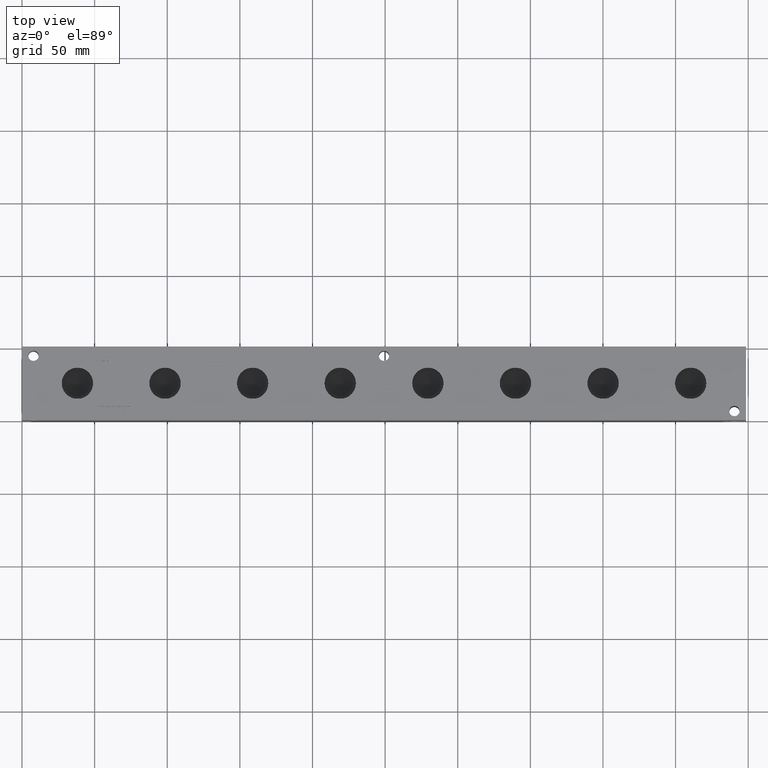
[diagram: clean part render]
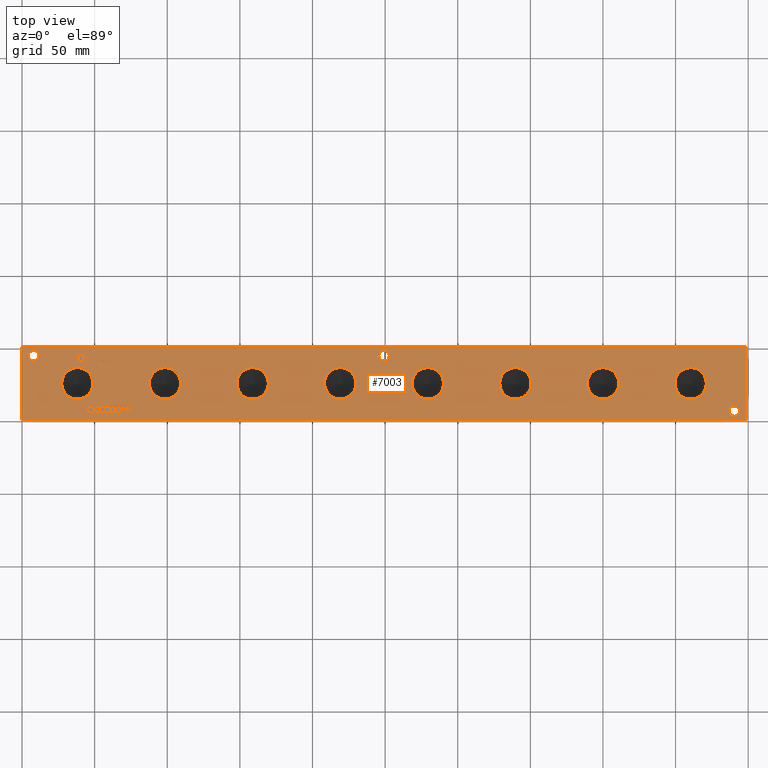
[diagram: same view with one face highlighted and labeled with its STEP entity id]
A machine part, top view. The second image highlights one B-rep face of the part: STEP entity #7003.
In plain terms, the highlighted planar face has unit normal (0, 0, 1).
Its self-contained STEP definition (entity closure, byte-faithful):
#68=CIRCLE('',#7281,10.795);
#69=CIRCLE('',#7282,10.795);
#70=CIRCLE('',#7283,10.795);
#71=CIRCLE('',#7284,10.795);
#72=CIRCLE('',#7285,10.795);
#73=CIRCLE('',#7286,10.795);
#74=CIRCLE('',#7287,10.795);
#75=CIRCLE('',#7288,10.795);
#76=CIRCLE('',#7289,10.795);
#77=CIRCLE('',#7290,10.795);
#78=CIRCLE('',#7291,10.795);
#79=CIRCLE('',#7292,10.795);
#80=CIRCLE('',#7293,10.795);
#81=CIRCLE('',#7294,10.795);
#82=CIRCLE('',#7295,10.795);
#83=CIRCLE('',#7296,10.795);
#84=CIRCLE('',#7297,3.5687);
#85=CIRCLE('',#7298,3.5687);
#86=CIRCLE('',#7299,3.5687);
#87=CIRCLE('',#7300,3.5687);
#88=CIRCLE('',#7301,3.5687);
#89=CIRCLE('',#7302,3.5687);
#166=FACE_BOUND('',#971,.T.);
#167=FACE_BOUND('',#972,.T.);
#168=FACE_BOUND('',#973,.T.);
#169=FACE_BOUND('',#974,.T.);
#170=FACE_BOUND('',#975,.T.);
#171=FACE_BOUND('',#976,.T.);
#172=FACE_BOUND('',#977,.T.);
#173=FACE_BOUND('',#978,.T.);
#174=FACE_BOUND('',#979,.T.);
#175=FACE_BOUND('',#980,.T.);
#176=FACE_BOUND('',#981,.T.);
#177=FACE_BOUND('',#982,.T.);
#178=FACE_BOUND('',#983,.T.);
#179=FACE_BOUND('',#984,.T.);
#180=FACE_BOUND('',#985,.T.);
#181=FACE_BOUND('',#986,.T.);
#182=FACE_BOUND('',#987,.T.);
#183=FACE_BOUND('',#988,.T.);
#184=FACE_BOUND('',#989,.T.);
#185=FACE_BOUND('',#990,.T.);
#186=FACE_BOUND('',#991,.T.);
#187=FACE_BOUND('',#992,.T.);
#188=FACE_BOUND('',#993,.T.);
#189=FACE_BOUND('',#994,.T.);
#190=FACE_BOUND('',#995,.T.);
#191=FACE_BOUND('',#996,.T.);
#192=FACE_BOUND('',#997,.T.);
#193=FACE_BOUND('',#998,.T.);
#194=FACE_BOUND('',#999,.T.);
#195=FACE_BOUND('',#1000,.T.);
#272=PLANE('',#7280);
#591=FACE_OUTER_BOUND('',#970,.T.);
#970=EDGE_LOOP('',(#5190,#5191,#5192,#5193));
#971=EDGE_LOOP('',(#5194,#5195,#5196,#5197,#5198,#5199,#5200,#5201,#5202));
#972=EDGE_LOOP('',(#5203,#5204,#5205,#5206,#5207,#5208,#5209,#5210,#5211,
#5212,#5213));
#973=EDGE_LOOP('',(#5214,#5215,#5216,#5217));
#974=EDGE_LOOP('',(#5218,#5219,#5220,#5221));
#975=EDGE_LOOP('',(#5222,#5223,#5224,#5225));
#976=EDGE_LOOP('',(#5226,#5227,#5228,#5229));
#977=EDGE_LOOP('',(#5230,#5231,#5232,#5233,#5234,#5235,#5236,#5237,#5238,
#5239,#5240,#5241,#5242,#5243,#5244,#5245,#5246,#5247));
#978=EDGE_LOOP('',(#5248,#5249,#5250,#5251,#5252,#5253,#5254,#5255,#5256,
#5257,#5258,#5259));
#979=EDGE_LOOP('',(#5260,#5261,#5262,#5263));
#980=EDGE_LOOP('',(#5264,#5265,#5266,#5267,#5268,#5269,#5270,#5271,#5272,
#5273,#5274));
#981=EDGE_LOOP('',(#5275,#5276));
#982=EDGE_LOOP('',(#5277,#5278));
#983=EDGE_LOOP('',(#5279,#5280));
#984=EDGE_LOOP('',(#5281,#5282));
#985=EDGE_LOOP('',(#5283,#5284));
#986=EDGE_LOOP('',(#5285,#5286));
#987=EDGE_LOOP('',(#5287,#5288));
#988=EDGE_LOOP('',(#5289,#5290));
#989=EDGE_LOOP('',(#5291,#5292));
#990=EDGE_LOOP('',(#5293,#5294));
#991=EDGE_LOOP('',(#5295,#5296));
#992=EDGE_LOOP('',(#5297,#5298,#5299,#5300,#5301,#5302,#5303,#5304,#5305,
#5306,#5307,#5308,#5309,#5310,#5311,#5312,#5313,#5314));
#993=EDGE_LOOP('',(#5315,#5316,#5317,#5318,#5319,#5320,#5321,#5322,#5323,
#5324,#5325,#5326,#5327,#5328,#5329,#5330,#5331,#5332));
#994=EDGE_LOOP('',(#5333,#5334,#5335,#5336,#5337,#5338,#5339,#5340,#5341,
#5342));
#995=EDGE_LOOP('',(#5343,#5344,#5345,#5346,#5347,#5348,#5349,#5350));
#996=EDGE_LOOP('',(#5351,#5352,#5353,#5354,#5355,#5356,#5357));
#997=EDGE_LOOP('',(#5358,#5359,#5360,#5361,#5362,#5363,#5364,#5365));
#998=EDGE_LOOP('',(#5366,#5367,#5368,#5369,#5370,#5371,#5372,#5373,#5374,
#5375,#5376,#5377,#5378));
#999=EDGE_LOOP('',(#5379,#5380,#5381,#5382,#5383,#5384,#5385,#5386,#5387,
#5388,#5389,#5390,#5391,#5392,#5393,#5394,#5395,#5396));
#1000=EDGE_LOOP('',(#5397,#5398,#5399,#5400,#5401,#5402,#5403,#5404,#5405,
#5406,#5407,#5408,#5409,#5410,#5411,#5412,#5413,#5414));
#1251=LINE('',#9096,#1914);
#1254=LINE('',#9102,#1917);
#1257=LINE('',#9108,#1920);
#1260=LINE('',#9114,#1923);
#1263=LINE('',#9120,#1926);
#1280=LINE('',#9393,#1943);
#1287=LINE('',#9475,#1950);
#1340=LINE('',#10453,#2003);
#1344=LINE('',#10461,#2007);
#1347=LINE('',#10467,#2010);
#1350=LINE('',#10473,#2013);
#1353=LINE('',#10479,#2016);
#1356=LINE('',#10485,#2019);
#1359=LINE('',#10491,#2022);
#1362=LINE('',#10497,#2025);
#1365=LINE('',#10503,#2028);
#1368=LINE('',#10509,#2031);
#1371=LINE('',#10515,#2034);
#1374=LINE('',#10521,#2037);
#1377=LINE('',#10527,#2040);
#1380=LINE('',#10533,#2043);
#1383=LINE('',#10539,#2046);
#1386=LINE('',#10545,#2049);
#1389=LINE('',#10551,#2052);
#1392=LINE('',#10556,#2055);
#1394=LINE('',#10562,#2057);
#1398=LINE('',#10570,#2061);
#1401=LINE('',#10576,#2064);
#1404=LINE('',#10582,#2067);
#1407=LINE('',#10588,#2070);
#1410=LINE('',#10594,#2073);
#1413=LINE('',#10600,#2076);
#1416=LINE('',#10606,#2079);
#1419=LINE('',#10612,#2082);
#1422=LINE('',#10618,#2085);
#1425=LINE('',#10624,#2088);
#1428=LINE('',#10629,#2091);
#1455=LINE('',#11094,#2118);
#1462=LINE('',#11176,#2125);
#1467=LINE('',#11238,#2130);
#1468=LINE('',#11240,#2131);
#1469=LINE('',#11242,#2132);
#1470=LINE('',#11243,#2133);
#1471=LINE('',#11290,#2134);
#1472=LINE('',#11292,#2135);
#1473=LINE('',#11294,#2136);
#1474=LINE('',#11296,#2137);
#1475=LINE('',#11298,#2138);
#1476=LINE('',#11300,#2139);
#1477=LINE('',#11302,#2140);
#1478=LINE('',#11304,#2141);
#1479=LINE('',#11306,#2142);
#1480=LINE('',#11308,#2143);
#1481=LINE('',#11310,#2144);
#1482=LINE('',#11312,#2145);
#1483=LINE('',#11314,#2146);
#1484=LINE('',#11316,#2147);
#1485=LINE('',#11318,#2148);
#1486=LINE('',#11320,#2149);
#1487=LINE('',#11322,#2150);
#1488=LINE('',#11323,#2151);
#1489=LINE('',#11326,#2152);
#1490=LINE('',#11328,#2153);
#1491=LINE('',#11330,#2154);
#1492=LINE('',#11332,#2155);
#1493=LINE('',#11334,#2156);
#1494=LINE('',#11336,#2157);
#1495=LINE('',#11338,#2158);
#1496=LINE('',#11340,#2159);
#1497=LINE('',#11342,#2160);
#1498=LINE('',#11344,#2161);
#1499=LINE('',#11346,#2162);
#1500=LINE('',#11348,#2163);
#1501=LINE('',#11350,#2164);
#1502=LINE('',#11352,#2165);
#1503=LINE('',#11354,#2166);
#1504=LINE('',#11356,#2167);
#1505=LINE('',#11358,#2168);
#1506=LINE('',#11359,#2169);
#1507=LINE('',#11362,#2170);
#1508=LINE('',#11364,#2171);
#1509=LINE('',#11366,#2172);
#1510=LINE('',#11368,#2173);
#1511=LINE('',#11370,#2174);
#1512=LINE('',#11372,#2175);
#1513=LINE('',#11374,#2176);
#1514=LINE('',#11376,#2177);
#1515=LINE('',#11378,#2178);
#1516=LINE('',#11379,#2179);
#1517=LINE('',#11382,#2180);
#1518=LINE('',#11384,#2181);
#1519=LINE('',#11386,#2182);
#1520=LINE('',#11388,#2183);
#1521=LINE('',#11390,#2184);
#1522=LINE('',#11392,#2185);
#1523=LINE('',#11394,#2186);
#1524=LINE('',#11395,#2187);
#1525=LINE('',#11413,#2188);
#1526=LINE('',#11415,#2189);
#1527=LINE('',#11417,#2190);
#1528=LINE('',#11424,#2191);
#1529=LINE('',#11426,#2192);
#1530=LINE('',#11428,#2193);
#1531=LINE('',#11430,#2194);
#1532=LINE('',#11432,#2195);
#1533=LINE('',#11434,#2196);
#1534=LINE('',#11436,#2197);
#1535=LINE('',#11437,#2198);
#1536=LINE('',#11440,#2199);
#1537=LINE('',#11442,#2200);
#1538=LINE('',#11444,#2201);
#1539=LINE('',#11446,#2202);
#1540=LINE('',#11448,#2203);
#1541=LINE('',#11450,#2204);
#1542=LINE('',#11452,#2205);
#1543=LINE('',#11454,#2206);
#1544=LINE('',#11456,#2207);
#1545=LINE('',#11458,#2208);
#1546=LINE('',#11460,#2209);
#1547=LINE('',#11462,#2210);
#1548=LINE('',#11463,#2211);
#1549=LINE('',#11466,#2212);
#1550=LINE('',#11468,#2213);
#1551=LINE('',#11470,#2214);
#1552=LINE('',#11472,#2215);
#1553=LINE('',#11474,#2216);
#1554=LINE('',#11476,#2217);
#1555=LINE('',#11478,#2218);
#1556=LINE('',#11480,#2219);
#1557=LINE('',#11482,#2220);
#1558=LINE('',#11484,#2221);
#1559=LINE('',#11486,#2222);
#1560=LINE('',#11488,#2223);
#1561=LINE('',#11490,#2224);
#1562=LINE('',#11492,#2225);
#1563=LINE('',#11494,#2226);
#1564=LINE('',#11496,#2227);
#1565=LINE('',#11498,#2228);
#1566=LINE('',#11499,#2229);
#1567=LINE('',#11502,#2230);
#1568=LINE('',#11504,#2231);
#1569=LINE('',#11506,#2232);
#1570=LINE('',#11508,#2233);
#1571=LINE('',#11510,#2234);
#1572=LINE('',#11512,#2235);
#1573=LINE('',#11514,#2236);
#1574=LINE('',#11516,#2237);
#1575=LINE('',#11518,#2238);
#1576=LINE('',#11520,#2239);
#1577=LINE('',#11522,#2240);
#1578=LINE('',#11524,#2241);
#1579=LINE('',#11526,#2242);
#1580=LINE('',#11528,#2243);
#1581=LINE('',#11530,#2244);
#1582=LINE('',#11532,#2245);
#1583=LINE('',#11534,#2246);
#1584=LINE('',#11535,#2247);
#1914=VECTOR('',#7609,10.);
#1917=VECTOR('',#7614,10.);
#1920=VECTOR('',#7619,10.);
#1923=VECTOR('',#7624,10.);
#1926=VECTOR('',#7629,10.);
#1943=VECTOR('',#7650,10.);
#1950=VECTOR('',#7659,10.);
#2003=VECTOR('',#7724,10.);
#2007=VECTOR('',#7730,10.);
#2010=VECTOR('',#7735,10.);
#2013=VECTOR('',#7740,10.);
#2016=VECTOR('',#7745,10.);
#2019=VECTOR('',#7750,10.);
#2022=VECTOR('',#7755,10.);
#2025=VECTOR('',#7760,10.);
#2028=VECTOR('',#7765,10.);
#2031=VECTOR('',#7770,10.);
#2034=VECTOR('',#7775,10.);
#2037=VECTOR('',#7780,10.);
#2040=VECTOR('',#7785,10.);
#2043=VECTOR('',#7790,10.);
#2046=VECTOR('',#7795,10.);
#2049=VECTOR('',#7800,10.);
#2052=VECTOR('',#7805,10.);
#2055=VECTOR('',#7810,10.);
#2057=VECTOR('',#7816,10.);
#2061=VECTOR('',#7822,10.);
#2064=VECTOR('',#7827,10.);
#2067=VECTOR('',#7832,10.);
#2070=VECTOR('',#7837,10.);
#2073=VECTOR('',#7842,10.);
#2076=VECTOR('',#7847,10.);
#2079=VECTOR('',#7852,10.);
#2082=VECTOR('',#7857,10.);
#2085=VECTOR('',#7862,10.);
#2088=VECTOR('',#7867,10.);
#2091=VECTOR('',#7872,10.);
#2118=VECTOR('',#7905,10.);
#2125=VECTOR('',#7914,10.);
#2130=VECTOR('',#7923,10.);
#2131=VECTOR('',#7924,10.);
#2132=VECTOR('',#7925,10.);
#2133=VECTOR('',#7926,10.);
#2134=VECTOR('',#7971,10.);
#2135=VECTOR('',#7972,10.);
#2136=VECTOR('',#7973,10.);
#2137=VECTOR('',#7974,10.);
#2138=VECTOR('',#7975,10.);
#2139=VECTOR('',#7976,10.);
#2140=VECTOR('',#7977,10.);
#2141=VECTOR('',#7978,10.);
#2142=VECTOR('',#7979,10.);
#2143=VECTOR('',#7980,10.);
#2144=VECTOR('',#7981,10.);
#2145=VECTOR('',#7982,10.);
#2146=VECTOR('',#7983,10.);
#2147=VECTOR('',#7984,10.);
#2148=VECTOR('',#7985,10.);
#2149=VECTOR('',#7986,10.);
#2150=VECTOR('',#7987,10.);
#2151=VECTOR('',#7988,10.);
#2152=VECTOR('',#7989,10.);
#2153=VECTOR('',#7990,10.);
#2154=VECTOR('',#7991,10.);
#2155=VECTOR('',#7992,10.);
#2156=VECTOR('',#7993,10.);
#2157=VECTOR('',#7994,10.);
#2158=VECTOR('',#7995,10.);
#2159=VECTOR('',#7996,10.);
#2160=VECTOR('',#7997,10.);
#2161=VECTOR('',#7998,10.);
#2162=VECTOR('',#7999,10.);
#2163=VECTOR('',#8000,10.);
#2164=VECTOR('',#8001,10.);
#2165=VECTOR('',#8002,10.);
#2166=VECTOR('',#8003,10.);
#2167=VECTOR('',#8004,10.);
#2168=VECTOR('',#8005,10.);
#2169=VECTOR('',#8006,10.);
#2170=VECTOR('',#8007,10.);
#2171=VECTOR('',#8008,10.);
#2172=VECTOR('',#8009,10.);
#2173=VECTOR('',#8010,10.);
#2174=VECTOR('',#8011,10.);
#2175=VECTOR('',#8012,10.);
#2176=VECTOR('',#8013,10.);
#2177=VECTOR('',#8014,10.);
#2178=VECTOR('',#8015,10.);
#2179=VECTOR('',#8016,10.);
#2180=VECTOR('',#8017,10.);
#2181=VECTOR('',#8018,10.);
#2182=VECTOR('',#8019,10.);
#2183=VECTOR('',#8020,10.);
#2184=VECTOR('',#8021,10.);
#2185=VECTOR('',#8022,10.);
#2186=VECTOR('',#8023,10.);
#2187=VECTOR('',#8024,10.);
#2188=VECTOR('',#8025,10.);
#2189=VECTOR('',#8026,10.);
#2190=VECTOR('',#8027,10.);
#2191=VECTOR('',#8028,10.);
#2192=VECTOR('',#8029,10.);
#2193=VECTOR('',#8030,10.);
#2194=VECTOR('',#8031,10.);
#2195=VECTOR('',#8032,10.);
#2196=VECTOR('',#8033,10.);
#2197=VECTOR('',#8034,10.);
#2198=VECTOR('',#8035,10.);
#2199=VECTOR('',#8036,10.);
#2200=VECTOR('',#8037,10.);
#2201=VECTOR('',#8038,10.);
#2202=VECTOR('',#8039,10.);
#2203=VECTOR('',#8040,10.);
#2204=VECTOR('',#8041,10.);
#2205=VECTOR('',#8042,10.);
#2206=VECTOR('',#8043,10.);
#2207=VECTOR('',#8044,10.);
#2208=VECTOR('',#8045,10.);
#2209=VECTOR('',#8046,10.);
#2210=VECTOR('',#8047,10.);
#2211=VECTOR('',#8048,10.);
#2212=VECTOR('',#8049,10.);
#2213=VECTOR('',#8050,10.);
#2214=VECTOR('',#8051,10.);
#2215=VECTOR('',#8052,10.);
#2216=VECTOR('',#8053,10.);
#2217=VECTOR('',#8054,10.);
#2218=VECTOR('',#8055,10.);
#2219=VECTOR('',#8056,10.);
#2220=VECTOR('',#8057,10.);
#2221=VECTOR('',#8058,10.);
#2222=VECTOR('',#8059,10.);
#2223=VECTOR('',#8060,10.);
#2224=VECTOR('',#8061,10.);
#2225=VECTOR('',#8062,10.);
#2226=VECTOR('',#8063,10.);
#2227=VECTOR('',#8064,10.);
#2228=VECTOR('',#8065,10.);
#2229=VECTOR('',#8066,10.);
#2230=VECTOR('',#8067,10.);
#2231=VECTOR('',#8068,10.);
#2232=VECTOR('',#8069,10.);
#2233=VECTOR('',#8070,10.);
#2234=VECTOR('',#8071,10.);
#2235=VECTOR('',#8072,10.);
#2236=VECTOR('',#8073,10.);
#2237=VECTOR('',#8074,10.);
#2238=VECTOR('',#8075,10.);
#2239=VECTOR('',#8076,10.);
#2240=VECTOR('',#8077,10.);
#2241=VECTOR('',#8078,10.);
#2242=VECTOR('',#8079,10.);
#2243=VECTOR('',#8080,10.);
#2244=VECTOR('',#8081,10.);
#2245=VECTOR('',#8082,10.);
#2246=VECTOR('',#8083,10.);
#2247=VECTOR('',#8084,10.);
#2569=B_SPLINE_CURVE_WITH_KNOTS('',2,(#9063,#9064,#9065,#9066),
 .UNSPECIFIED.,.F.,.F.,(3,1,3),(0.,1.,2.),.UNSPECIFIED.);
#2571=B_SPLINE_CURVE_WITH_KNOTS('',2,(#9084,#9085,#9086,#9087),
 .UNSPECIFIED.,.F.,.F.,(3,1,3),(0.,1.,2.),.UNSPECIFIED.);
#2573=B_SPLINE_CURVE_WITH_KNOTS('',2,(#9133,#9134,#9135,#9136),
 .UNSPECIFIED.,.F.,.F.,(3,1,3),(0.,1.,2.),.UNSPECIFIED.);
#2575=B_SPLINE_CURVE_WITH_KNOTS('',2,(#9151,#9152,#9153,#9154),
 .UNSPECIFIED.,.F.,.F.,(3,1,3),(0.,1.,2.),.UNSPECIFIED.);
#2597=B_SPLINE_CURVE_WITH_KNOTS('',2,(#9360,#9361,#9362,#9363),
 .UNSPECIFIED.,.F.,.F.,(3,1,3),(0.,1.,2.),.UNSPECIFIED.);
#2599=B_SPLINE_CURVE_WITH_KNOTS('',2,(#9381,#9382,#9383,#9384),
 .UNSPECIFIED.,.F.,.F.,(3,1,3),(0.,1.,2.),.UNSPECIFIED.);
#2601=B_SPLINE_CURVE_WITH_KNOTS('',2,(#9406,#9407,#9408,#9409),
 .UNSPECIFIED.,.F.,.F.,(3,1,3),(0.,1.,2.),.UNSPECIFIED.);
#2603=B_SPLINE_CURVE_WITH_KNOTS('',2,(#9425,#9426,#9427,#9428),
 .UNSPECIFIED.,.F.,.F.,(3,1,3),(0.,1.,2.),.UNSPECIFIED.);
#2605=B_SPLINE_CURVE_WITH_KNOTS('',2,(#9444,#9445,#9446,#9447),
 .UNSPECIFIED.,.F.,.F.,(3,1,3),(0.,1.,2.),.UNSPECIFIED.);
#2607=B_SPLINE_CURVE_WITH_KNOTS('',2,(#9463,#9464,#9465,#9466),
 .UNSPECIFIED.,.F.,.F.,(3,1,3),(0.,1.,2.),.UNSPECIFIED.);
#2609=B_SPLINE_CURVE_WITH_KNOTS('',2,(#9488,#9489,#9490,#9491),
 .UNSPECIFIED.,.F.,.F.,(3,1,3),(0.,1.,2.),.UNSPECIFIED.);
#2611=B_SPLINE_CURVE_WITH_KNOTS('',2,(#9507,#9508,#9509,#9510),
 .UNSPECIFIED.,.F.,.F.,(3,1,3),(0.,1.,2.),.UNSPECIFIED.);
#2613=B_SPLINE_CURVE_WITH_KNOTS('',2,(#9525,#9526,#9527,#9528),
 .UNSPECIFIED.,.F.,.F.,(3,1,3),(0.,1.,2.),.UNSPECIFIED.);
#2631=B_SPLINE_CURVE_WITH_KNOTS('',2,(#9696,#9697,#9698,#9699),
 .UNSPECIFIED.,.F.,.F.,(3,1,3),(0.,1.,2.),.UNSPECIFIED.);
#2633=B_SPLINE_CURVE_WITH_KNOTS('',2,(#9717,#9718,#9719,#9720),
 .UNSPECIFIED.,.F.,.F.,(3,1,3),(0.,1.,2.),.UNSPECIFIED.);
#2635=B_SPLINE_CURVE_WITH_KNOTS('',2,(#9736,#9737,#9738,#9739),
 .UNSPECIFIED.,.F.,.F.,(3,1,3),(0.,1.,2.),.UNSPECIFIED.);
#2637=B_SPLINE_CURVE_WITH_KNOTS('',2,(#9754,#9755,#9756,#9757),
 .UNSPECIFIED.,.F.,.F.,(3,1,3),(0.,1.,2.),.UNSPECIFIED.);
#2655=B_SPLINE_CURVE_WITH_KNOTS('',2,(#9925,#9926,#9927,#9928),
 .UNSPECIFIED.,.F.,.F.,(3,1,3),(0.,1.,2.),.UNSPECIFIED.);
#2657=B_SPLINE_CURVE_WITH_KNOTS('',2,(#9946,#9947,#9948,#9949),
 .UNSPECIFIED.,.F.,.F.,(3,1,3),(0.,1.,2.),.UNSPECIFIED.);
#2659=B_SPLINE_CURVE_WITH_KNOTS('',2,(#9965,#9966,#9967,#9968),
 .UNSPECIFIED.,.F.,.F.,(3,1,3),(0.,1.,2.),.UNSPECIFIED.);
#2661=B_SPLINE_CURVE_WITH_KNOTS('',2,(#9983,#9984,#9985,#9986),
 .UNSPECIFIED.,.F.,.F.,(3,1,3),(0.,1.,2.),.UNSPECIFIED.);
#2679=B_SPLINE_CURVE_WITH_KNOTS('',2,(#10154,#10155,#10156,#10157),
 .UNSPECIFIED.,.F.,.F.,(3,1,3),(0.,1.,2.),.UNSPECIFIED.);
#2681=B_SPLINE_CURVE_WITH_KNOTS('',2,(#10175,#10176,#10177,#10178),
 .UNSPECIFIED.,.F.,.F.,(3,1,3),(0.,1.,2.),.UNSPECIFIED.);
#2683=B_SPLINE_CURVE_WITH_KNOTS('',2,(#10194,#10195,#10196,#10197),
 .UNSPECIFIED.,.F.,.F.,(3,1,3),(0.,1.,2.),.UNSPECIFIED.);
#2685=B_SPLINE_CURVE_WITH_KNOTS('',2,(#10212,#10213,#10214,#10215),
 .UNSPECIFIED.,.F.,.F.,(3,1,3),(0.,1.,2.),.UNSPECIFIED.);
#2703=B_SPLINE_CURVE_WITH_KNOTS('',2,(#10383,#10384,#10385,#10386),
 .UNSPECIFIED.,.F.,.F.,(3,1,3),(0.,1.,2.),.UNSPECIFIED.);
#2705=B_SPLINE_CURVE_WITH_KNOTS('',2,(#10404,#10405,#10406,#10407),
 .UNSPECIFIED.,.F.,.F.,(3,1,3),(0.,1.,2.),.UNSPECIFIED.);
#2707=B_SPLINE_CURVE_WITH_KNOTS('',2,(#10423,#10424,#10425,#10426),
 .UNSPECIFIED.,.F.,.F.,(3,1,3),(0.,1.,2.),.UNSPECIFIED.);
#2709=B_SPLINE_CURVE_WITH_KNOTS('',2,(#10441,#10442,#10443,#10444),
 .UNSPECIFIED.,.F.,.F.,(3,1,3),(0.,1.,2.),.UNSPECIFIED.);
#2727=B_SPLINE_CURVE_WITH_KNOTS('',2,(#10794,#10795,#10796,#10797),
 .UNSPECIFIED.,.F.,.F.,(3,1,3),(0.,1.,2.),.UNSPECIFIED.);
#2729=B_SPLINE_CURVE_WITH_KNOTS('',2,(#10815,#10816,#10817,#10818),
 .UNSPECIFIED.,.F.,.F.,(3,1,3),(0.,1.,2.),.UNSPECIFIED.);
#2731=B_SPLINE_CURVE_WITH_KNOTS('',2,(#10834,#10835,#10836,#10837),
 .UNSPECIFIED.,.F.,.F.,(3,1,3),(0.,1.,2.),.UNSPECIFIED.);
#2733=B_SPLINE_CURVE_WITH_KNOTS('',2,(#10852,#10853,#10854,#10855),
 .UNSPECIFIED.,.F.,.F.,(3,1,3),(0.,1.,2.),.UNSPECIFIED.);
#2755=B_SPLINE_CURVE_WITH_KNOTS('',2,(#11061,#11062,#11063,#11064),
 .UNSPECIFIED.,.F.,.F.,(3,1,3),(0.,1.,2.),.UNSPECIFIED.);
#2757=B_SPLINE_CURVE_WITH_KNOTS('',2,(#11082,#11083,#11084,#11085),
 .UNSPECIFIED.,.F.,.F.,(3,1,3),(0.,1.,2.),.UNSPECIFIED.);
#2759=B_SPLINE_CURVE_WITH_KNOTS('',2,(#11107,#11108,#11109,#11110),
 .UNSPECIFIED.,.F.,.F.,(3,1,3),(0.,1.,2.),.UNSPECIFIED.);
#2761=B_SPLINE_CURVE_WITH_KNOTS('',2,(#11126,#11127,#11128,#11129),
 .UNSPECIFIED.,.F.,.F.,(3,1,3),(0.,1.,2.),.UNSPECIFIED.);
#2763=B_SPLINE_CURVE_WITH_KNOTS('',2,(#11145,#11146,#11147,#11148),
 .UNSPECIFIED.,.F.,.F.,(3,1,3),(0.,1.,2.),.UNSPECIFIED.);
#2765=B_SPLINE_CURVE_WITH_KNOTS('',2,(#11164,#11165,#11166,#11167),
 .UNSPECIFIED.,.F.,.F.,(3,1,3),(0.,1.,2.),.UNSPECIFIED.);
#2767=B_SPLINE_CURVE_WITH_KNOTS('',2,(#11189,#11190,#11191,#11192),
 .UNSPECIFIED.,.F.,.F.,(3,1,3),(0.,1.,2.),.UNSPECIFIED.);
#2769=B_SPLINE_CURVE_WITH_KNOTS('',2,(#11208,#11209,#11210,#11211),
 .UNSPECIFIED.,.F.,.F.,(3,1,3),(0.,1.,2.),.UNSPECIFIED.);
#2771=B_SPLINE_CURVE_WITH_KNOTS('',2,(#11226,#11227,#11228,#11229),
 .UNSPECIFIED.,.F.,.F.,(3,1,3),(0.,1.,2.),.UNSPECIFIED.);
#2773=B_SPLINE_CURVE_WITH_KNOTS('',2,(#11398,#11399,#11400,#11401),
 .UNSPECIFIED.,.F.,.F.,(3,1,3),(0.,1.,2.),.UNSPECIFIED.);
#2774=B_SPLINE_CURVE_WITH_KNOTS('',2,(#11403,#11404,#11405,#11406),
 .UNSPECIFIED.,.F.,.F.,(3,1,3),(0.,1.,2.),.UNSPECIFIED.);
#2775=B_SPLINE_CURVE_WITH_KNOTS('',2,(#11408,#11409,#11410,#11411),
 .UNSPECIFIED.,.F.,.F.,(3,1,3),(0.,1.,2.),.UNSPECIFIED.);
#2776=B_SPLINE_CURVE_WITH_KNOTS('',2,(#11418,#11419,#11420,#11421),
 .UNSPECIFIED.,.F.,.F.,(3,1,3),(0.,1.,2.),.UNSPECIFIED.);
#2803=VERTEX_POINT('',#9061);
#2804=VERTEX_POINT('',#9062);
#2807=VERTEX_POINT('',#9083);
#2809=VERTEX_POINT('',#9095);
#2811=VERTEX_POINT('',#9101);
#2813=VERTEX_POINT('',#9107);
#2815=VERTEX_POINT('',#9113);
#2817=VERTEX_POINT('',#9119);
#2819=VERTEX_POINT('',#9132);
#2841=VERTEX_POINT('',#9358);
#2842=VERTEX_POINT('',#9359);
#2845=VERTEX_POINT('',#9380);
#2847=VERTEX_POINT('',#9392);
#2849=VERTEX_POINT('',#9405);
#2851=VERTEX_POINT('',#9424);
#2853=VERTEX_POINT('',#9443);
#2855=VERTEX_POINT('',#9462);
#2857=VERTEX_POINT('',#9474);
#2859=VERTEX_POINT('',#9487);
#2861=VERTEX_POINT('',#9506);
#2879=VERTEX_POINT('',#9694);
#2880=VERTEX_POINT('',#9695);
#2883=VERTEX_POINT('',#9716);
#2885=VERTEX_POINT('',#9735);
#2903=VERTEX_POINT('',#9923);
#2904=VERTEX_POINT('',#9924);
#2907=VERTEX_POINT('',#9945);
#2909=VERTEX_POINT('',#9964);
#2927=VERTEX_POINT('',#10152);
#2928=VERTEX_POINT('',#10153);
#2931=VERTEX_POINT('',#10174);
#2933=VERTEX_POINT('',#10193);
#2951=VERTEX_POINT('',#10381);
#2952=VERTEX_POINT('',#10382);
#2955=VERTEX_POINT('',#10403);
#2957=VERTEX_POINT('',#10422);
#2959=VERTEX_POINT('',#10451);
#2960=VERTEX_POINT('',#10452);
#2963=VERTEX_POINT('',#10460);
#2965=VERTEX_POINT('',#10466);
#2967=VERTEX_POINT('',#10472);
#2969=VERTEX_POINT('',#10478);
#2971=VERTEX_POINT('',#10484);
#2973=VERTEX_POINT('',#10490);
#2975=VERTEX_POINT('',#10496);
#2977=VERTEX_POINT('',#10502);
#2979=VERTEX_POINT('',#10508);
#2981=VERTEX_POINT('',#10514);
#2983=VERTEX_POINT('',#10520);
#2985=VERTEX_POINT('',#10526);
#2987=VERTEX_POINT('',#10532);
#2989=VERTEX_POINT('',#10538);
#2991=VERTEX_POINT('',#10544);
#2993=VERTEX_POINT('',#10550);
#2995=VERTEX_POINT('',#10560);
#2996=VERTEX_POINT('',#10561);
#2999=VERTEX_POINT('',#10569);
#3001=VERTEX_POINT('',#10575);
#3003=VERTEX_POINT('',#10581);
#3005=VERTEX_POINT('',#10587);
#3007=VERTEX_POINT('',#10593);
#3009=VERTEX_POINT('',#10599);
#3011=VERTEX_POINT('',#10605);
#3013=VERTEX_POINT('',#10611);
#3015=VERTEX_POINT('',#10617);
#3017=VERTEX_POINT('',#10623);
#3035=VERTEX_POINT('',#10792);
#3036=VERTEX_POINT('',#10793);
#3039=VERTEX_POINT('',#10814);
#3041=VERTEX_POINT('',#10833);
#3063=VERTEX_POINT('',#11059);
#3064=VERTEX_POINT('',#11060);
#3067=VERTEX_POINT('',#11081);
#3069=VERTEX_POINT('',#11093);
#3071=VERTEX_POINT('',#11106);
#3073=VERTEX_POINT('',#11125);
#3075=VERTEX_POINT('',#11144);
#3077=VERTEX_POINT('',#11163);
#3079=VERTEX_POINT('',#11175);
#3081=VERTEX_POINT('',#11188);
#3083=VERTEX_POINT('',#11207);
#3085=VERTEX_POINT('',#11236);
#3086=VERTEX_POINT('',#11237);
#3087=VERTEX_POINT('',#11239);
#3088=VERTEX_POINT('',#11241);
#3089=VERTEX_POINT('',#11244);
#3090=VERTEX_POINT('',#11245);
#3091=VERTEX_POINT('',#11248);
#3092=VERTEX_POINT('',#11249);
#3093=VERTEX_POINT('',#11252);
#3094=VERTEX_POINT('',#11253);
#3095=VERTEX_POINT('',#11256);
#3096=VERTEX_POINT('',#11257);
#3097=VERTEX_POINT('',#11260);
#3098=VERTEX_POINT('',#11261);
#3099=VERTEX_POINT('',#11264);
#3100=VERTEX_POINT('',#11265);
#3101=VERTEX_POINT('',#11268);
#3102=VERTEX_POINT('',#11269);
#3103=VERTEX_POINT('',#11272);
#3104=VERTEX_POINT('',#11273);
#3105=VERTEX_POINT('',#11276);
#3106=VERTEX_POINT('',#11277);
#3107=VERTEX_POINT('',#11280);
#3108=VERTEX_POINT('',#11281);
#3109=VERTEX_POINT('',#11284);
#3110=VERTEX_POINT('',#11285);
#3111=VERTEX_POINT('',#11288);
#3112=VERTEX_POINT('',#11289);
#3113=VERTEX_POINT('',#11291);
#3114=VERTEX_POINT('',#11293);
#3115=VERTEX_POINT('',#11295);
#3116=VERTEX_POINT('',#11297);
#3117=VERTEX_POINT('',#11299);
#3118=VERTEX_POINT('',#11301);
#3119=VERTEX_POINT('',#11303);
#3120=VERTEX_POINT('',#11305);
#3121=VERTEX_POINT('',#11307);
#3122=VERTEX_POINT('',#11309);
#3123=VERTEX_POINT('',#11311);
#3124=VERTEX_POINT('',#11313);
#3125=VERTEX_POINT('',#11315);
#3126=VERTEX_POINT('',#11317);
#3127=VERTEX_POINT('',#11319);
#3128=VERTEX_POINT('',#11321);
#3129=VERTEX_POINT('',#11324);
#3130=VERTEX_POINT('',#11325);
#3131=VERTEX_POINT('',#11327);
#3132=VERTEX_POINT('',#11329);
#3133=VERTEX_POINT('',#11331);
#3134=VERTEX_POINT('',#11333);
#3135=VERTEX_POINT('',#11335);
#3136=VERTEX_POINT('',#11337);
#3137=VERTEX_POINT('',#11339);
#3138=VERTEX_POINT('',#11341);
#3139=VERTEX_POINT('',#11343);
#3140=VERTEX_POINT('',#11345);
#3141=VERTEX_POINT('',#11347);
#3142=VERTEX_POINT('',#11349);
#3143=VERTEX_POINT('',#11351);
#3144=VERTEX_POINT('',#11353);
#3145=VERTEX_POINT('',#11355);
#3146=VERTEX_POINT('',#11357);
#3147=VERTEX_POINT('',#11360);
#3148=VERTEX_POINT('',#11361);
#3149=VERTEX_POINT('',#11363);
#3150=VERTEX_POINT('',#11365);
#3151=VERTEX_POINT('',#11367);
#3152=VERTEX_POINT('',#11369);
#3153=VERTEX_POINT('',#11371);
#3154=VERTEX_POINT('',#11373);
#3155=VERTEX_POINT('',#11375);
#3156=VERTEX_POINT('',#11377);
#3157=VERTEX_POINT('',#11380);
#3158=VERTEX_POINT('',#11381);
#3159=VERTEX_POINT('',#11383);
#3160=VERTEX_POINT('',#11385);
#3161=VERTEX_POINT('',#11387);
#3162=VERTEX_POINT('',#11389);
#3163=VERTEX_POINT('',#11391);
#3164=VERTEX_POINT('',#11393);
#3165=VERTEX_POINT('',#11396);
#3166=VERTEX_POINT('',#11397);
#3167=VERTEX_POINT('',#11402);
#3168=VERTEX_POINT('',#11407);
#3169=VERTEX_POINT('',#11412);
#3170=VERTEX_POINT('',#11414);
#3171=VERTEX_POINT('',#11416);
#3172=VERTEX_POINT('',#11422);
#3173=VERTEX_POINT('',#11423);
#3174=VERTEX_POINT('',#11425);
#3175=VERTEX_POINT('',#11427);
#3176=VERTEX_POINT('',#11429);
#3177=VERTEX_POINT('',#11431);
#3178=VERTEX_POINT('',#11433);
#3179=VERTEX_POINT('',#11435);
#3180=VERTEX_POINT('',#11438);
#3181=VERTEX_POINT('',#11439);
#3182=VERTEX_POINT('',#11441);
#3183=VERTEX_POINT('',#11443);
#3184=VERTEX_POINT('',#11445);
#3185=VERTEX_POINT('',#11447);
#3186=VERTEX_POINT('',#11449);
#3187=VERTEX_POINT('',#11451);
#3188=VERTEX_POINT('',#11453);
#3189=VERTEX_POINT('',#11455);
#3190=VERTEX_POINT('',#11457);
#3191=VERTEX_POINT('',#11459);
#3192=VERTEX_POINT('',#11461);
#3193=VERTEX_POINT('',#11464);
#3194=VERTEX_POINT('',#11465);
#3195=VERTEX_POINT('',#11467);
#3196=VERTEX_POINT('',#11469);
#3197=VERTEX_POINT('',#11471);
#3198=VERTEX_POINT('',#11473);
#3199=VERTEX_POINT('',#11475);
#3200=VERTEX_POINT('',#11477);
#3201=VERTEX_POINT('',#11479);
#3202=VERTEX_POINT('',#11481);
#3203=VERTEX_POINT('',#11483);
#3204=VERTEX_POINT('',#11485);
#3205=VERTEX_POINT('',#11487);
#3206=VERTEX_POINT('',#11489);
#3207=VERTEX_POINT('',#11491);
#3208=VERTEX_POINT('',#11493);
#3209=VERTEX_POINT('',#11495);
#3210=VERTEX_POINT('',#11497);
#3211=VERTEX_POINT('',#11500);
#3212=VERTEX_POINT('',#11501);
#3213=VERTEX_POINT('',#11503);
#3214=VERTEX_POINT('',#11505);
#3215=VERTEX_POINT('',#11507);
#3216=VERTEX_POINT('',#11509);
#3217=VERTEX_POINT('',#11511);
#3218=VERTEX_POINT('',#11513);
#3219=VERTEX_POINT('',#11515);
#3220=VERTEX_POINT('',#11517);
#3221=VERTEX_POINT('',#11519);
#3222=VERTEX_POINT('',#11521);
#3223=VERTEX_POINT('',#11523);
#3224=VERTEX_POINT('',#11525);
#3225=VERTEX_POINT('',#11527);
#3226=VERTEX_POINT('',#11529);
#3227=VERTEX_POINT('',#11531);
#3228=VERTEX_POINT('',#11533);
#3480=EDGE_CURVE('',#2803,#2804,#2569,.T.);
#3484=EDGE_CURVE('',#2807,#2803,#2571,.T.);
#3487=EDGE_CURVE('',#2809,#2807,#1251,.T.);
#3490=EDGE_CURVE('',#2811,#2809,#1254,.T.);
#3493=EDGE_CURVE('',#2813,#2811,#1257,.T.);
#3496=EDGE_CURVE('',#2815,#2813,#1260,.T.);
#3499=EDGE_CURVE('',#2817,#2815,#1263,.T.);
#3502=EDGE_CURVE('',#2819,#2817,#2573,.T.);
#3505=EDGE_CURVE('',#2804,#2819,#2575,.T.);
#3537=EDGE_CURVE('',#2841,#2842,#2597,.T.);
#3541=EDGE_CURVE('',#2845,#2841,#2599,.T.);
#3544=EDGE_CURVE('',#2847,#2845,#1280,.T.);
#3547=EDGE_CURVE('',#2849,#2847,#2601,.T.);
#3550=EDGE_CURVE('',#2851,#2849,#2603,.T.);
#3553=EDGE_CURVE('',#2853,#2851,#2605,.T.);
#3556=EDGE_CURVE('',#2855,#2853,#2607,.T.);
#3559=EDGE_CURVE('',#2857,#2855,#1287,.T.);
#3562=EDGE_CURVE('',#2859,#2857,#2609,.T.);
#3565=EDGE_CURVE('',#2861,#2859,#2611,.T.);
#3568=EDGE_CURVE('',#2842,#2861,#2613,.T.);
#3594=EDGE_CURVE('',#2879,#2880,#2631,.T.);
#3598=EDGE_CURVE('',#2883,#2879,#2633,.T.);
#3601=EDGE_CURVE('',#2885,#2883,#2635,.T.);
#3604=EDGE_CURVE('',#2880,#2885,#2637,.T.);
#3630=EDGE_CURVE('',#2903,#2904,#2655,.T.);
#3634=EDGE_CURVE('',#2907,#2903,#2657,.T.);
#3637=EDGE_CURVE('',#2909,#2907,#2659,.T.);
#3640=EDGE_CURVE('',#2904,#2909,#2661,.T.);
#3666=EDGE_CURVE('',#2927,#2928,#2679,.T.);
#3670=EDGE_CURVE('',#2931,#2927,#2681,.T.);
#3673=EDGE_CURVE('',#2933,#2931,#2683,.T.);
#3676=EDGE_CURVE('',#2928,#2933,#2685,.T.);
#3702=EDGE_CURVE('',#2951,#2952,#2703,.T.);
#3706=EDGE_CURVE('',#2955,#2951,#2705,.T.);
#3709=EDGE_CURVE('',#2957,#2955,#2707,.T.);
#3712=EDGE_CURVE('',#2952,#2957,#2709,.T.);
#3714=EDGE_CURVE('',#2959,#2960,#1340,.T.);
#3718=EDGE_CURVE('',#2963,#2959,#1344,.T.);
#3721=EDGE_CURVE('',#2965,#2963,#1347,.T.);
#3724=EDGE_CURVE('',#2967,#2965,#1350,.T.);
#3727=EDGE_CURVE('',#2969,#2967,#1353,.T.);
#3730=EDGE_CURVE('',#2971,#2969,#1356,.T.);
#3733=EDGE_CURVE('',#2973,#2971,#1359,.T.);
#3736=EDGE_CURVE('',#2975,#2973,#1362,.T.);
#3739=EDGE_CURVE('',#2977,#2975,#1365,.T.);
#3742=EDGE_CURVE('',#2979,#2977,#1368,.T.);
#3745=EDGE_CURVE('',#2981,#2979,#1371,.T.);
#3748=EDGE_CURVE('',#2983,#2981,#1374,.T.);
#3751=EDGE_CURVE('',#2985,#2983,#1377,.T.);
#3754=EDGE_CURVE('',#2987,#2985,#1380,.T.);
#3757=EDGE_CURVE('',#2989,#2987,#1383,.T.);
#3760=EDGE_CURVE('',#2991,#2989,#1386,.T.);
#3763=EDGE_CURVE('',#2993,#2991,#1389,.T.);
#3766=EDGE_CURVE('',#2960,#2993,#1392,.T.);
#3768=EDGE_CURVE('',#2995,#2996,#1394,.T.);
#3772=EDGE_CURVE('',#2999,#2995,#1398,.T.);
#3775=EDGE_CURVE('',#3001,#2999,#1401,.T.);
#3778=EDGE_CURVE('',#3003,#3001,#1404,.T.);
#3781=EDGE_CURVE('',#3005,#3003,#1407,.T.);
#3784=EDGE_CURVE('',#3007,#3005,#1410,.T.);
#3787=EDGE_CURVE('',#3009,#3007,#1413,.T.);
#3790=EDGE_CURVE('',#3011,#3009,#1416,.T.);
#3793=EDGE_CURVE('',#3013,#3011,#1419,.T.);
#3796=EDGE_CURVE('',#3015,#3013,#1422,.T.);
#3799=EDGE_CURVE('',#3017,#3015,#1425,.T.);
#3802=EDGE_CURVE('',#2996,#3017,#1428,.T.);
#3828=EDGE_CURVE('',#3035,#3036,#2727,.T.);
#3832=EDGE_CURVE('',#3039,#3035,#2729,.T.);
#3835=EDGE_CURVE('',#3041,#3039,#2731,.T.);
#3838=EDGE_CURVE('',#3036,#3041,#2733,.T.);
#3870=EDGE_CURVE('',#3063,#3064,#2755,.T.);
#3874=EDGE_CURVE('',#3067,#3063,#2757,.T.);
#3877=EDGE_CURVE('',#3069,#3067,#1455,.T.);
#3880=EDGE_CURVE('',#3071,#3069,#2759,.T.);
#3883=EDGE_CURVE('',#3073,#3071,#2761,.T.);
#3886=EDGE_CURVE('',#3075,#3073,#2763,.T.);
#3889=EDGE_CURVE('',#3077,#3075,#2765,.T.);
#3892=EDGE_CURVE('',#3079,#3077,#1462,.T.);
#3895=EDGE_CURVE('',#3081,#3079,#2767,.T.);
#3898=EDGE_CURVE('',#3083,#3081,#2769,.T.);
#3901=EDGE_CURVE('',#3064,#3083,#2771,.T.);
#3903=EDGE_CURVE('',#3085,#3086,#1467,.T.);
#3904=EDGE_CURVE('',#3086,#3087,#1468,.T.);
#3905=EDGE_CURVE('',#3087,#3088,#1469,.T.);
#3906=EDGE_CURVE('',#3088,#3085,#1470,.T.);
#3907=EDGE_CURVE('',#3089,#3090,#68,.T.);
#3908=EDGE_CURVE('',#3090,#3089,#69,.T.);
#3909=EDGE_CURVE('',#3091,#3092,#70,.T.);
#3910=EDGE_CURVE('',#3092,#3091,#71,.T.);
#3911=EDGE_CURVE('',#3093,#3094,#72,.T.);
#3912=EDGE_CURVE('',#3094,#3093,#73,.T.);
#3913=EDGE_CURVE('',#3095,#3096,#74,.T.);
#3914=EDGE_CURVE('',#3096,#3095,#75,.T.);
#3915=EDGE_CURVE('',#3097,#3098,#76,.T.);
#3916=EDGE_CURVE('',#3098,#3097,#77,.T.);
#3917=EDGE_CURVE('',#3099,#3100,#78,.T.);
#3918=EDGE_CURVE('',#3100,#3099,#79,.T.);
#3919=EDGE_CURVE('',#3101,#3102,#80,.T.);
#3920=EDGE_CURVE('',#3102,#3101,#81,.T.);
#3921=EDGE_CURVE('',#3103,#3104,#82,.T.);
#3922=EDGE_CURVE('',#3104,#3103,#83,.T.);
#3923=EDGE_CURVE('',#3105,#3106,#84,.T.);
#3924=EDGE_CURVE('',#3106,#3105,#85,.T.);
#3925=EDGE_CURVE('',#3107,#3108,#86,.T.);
#3926=EDGE_CURVE('',#3108,#3107,#87,.T.);
#3927=EDGE_CURVE('',#3109,#3110,#88,.T.);
#3928=EDGE_CURVE('',#3110,#3109,#89,.T.);
#3929=EDGE_CURVE('',#3111,#3112,#1471,.T.);
#3930=EDGE_CURVE('',#3112,#3113,#1472,.T.);
#3931=EDGE_CURVE('',#3113,#3114,#1473,.T.);
#3932=EDGE_CURVE('',#3114,#3115,#1474,.T.);
#3933=EDGE_CURVE('',#3115,#3116,#1475,.T.);
#3934=EDGE_CURVE('',#3116,#3117,#1476,.T.);
#3935=EDGE_CURVE('',#3117,#3118,#1477,.T.);
#3936=EDGE_CURVE('',#3118,#3119,#1478,.T.);
#3937=EDGE_CURVE('',#3119,#3120,#1479,.T.);
#3938=EDGE_CURVE('',#3120,#3121,#1480,.T.);
#3939=EDGE_CURVE('',#3121,#3122,#1481,.T.);
#3940=EDGE_CURVE('',#3122,#3123,#1482,.T.);
#3941=EDGE_CURVE('',#3123,#3124,#1483,.T.);
#3942=EDGE_CURVE('',#3124,#3125,#1484,.T.);
#3943=EDGE_CURVE('',#3125,#3126,#1485,.T.);
#3944=EDGE_CURVE('',#3126,#3127,#1486,.T.);
#3945=EDGE_CURVE('',#3127,#3128,#1487,.T.);
#3946=EDGE_CURVE('',#3128,#3111,#1488,.T.);
#3947=EDGE_CURVE('',#3129,#3130,#1489,.T.);
#3948=EDGE_CURVE('',#3130,#3131,#1490,.T.);
#3949=EDGE_CURVE('',#3131,#3132,#1491,.T.);
#3950=EDGE_CURVE('',#3132,#3133,#1492,.T.);
#3951=EDGE_CURVE('',#3133,#3134,#1493,.T.);
#3952=EDGE_CURVE('',#3134,#3135,#1494,.T.);
#3953=EDGE_CURVE('',#3135,#3136,#1495,.T.);
#3954=EDGE_CURVE('',#3136,#3137,#1496,.T.);
#3955=EDGE_CURVE('',#3137,#3138,#1497,.T.);
#3956=EDGE_CURVE('',#3138,#3139,#1498,.T.);
#3957=EDGE_CURVE('',#3139,#3140,#1499,.T.);
#3958=EDGE_CURVE('',#3140,#3141,#1500,.T.);
#3959=EDGE_CURVE('',#3141,#3142,#1501,.T.);
#3960=EDGE_CURVE('',#3142,#3143,#1502,.T.);
#3961=EDGE_CURVE('',#3143,#3144,#1503,.T.);
#3962=EDGE_CURVE('',#3144,#3145,#1504,.T.);
#3963=EDGE_CURVE('',#3145,#3146,#1505,.T.);
#3964=EDGE_CURVE('',#3146,#3129,#1506,.T.);
#3965=EDGE_CURVE('',#3147,#3148,#1507,.T.);
#3966=EDGE_CURVE('',#3148,#3149,#1508,.T.);
#3967=EDGE_CURVE('',#3149,#3150,#1509,.T.);
#3968=EDGE_CURVE('',#3150,#3151,#1510,.T.);
#3969=EDGE_CURVE('',#3151,#3152,#1511,.T.);
#3970=EDGE_CURVE('',#3152,#3153,#1512,.T.);
#3971=EDGE_CURVE('',#3153,#3154,#1513,.T.);
#3972=EDGE_CURVE('',#3154,#3155,#1514,.T.);
#3973=EDGE_CURVE('',#3155,#3156,#1515,.T.);
#3974=EDGE_CURVE('',#3156,#3147,#1516,.T.);
#3975=EDGE_CURVE('',#3157,#3158,#1517,.T.);
#3976=EDGE_CURVE('',#3158,#3159,#1518,.T.);
#3977=EDGE_CURVE('',#3159,#3160,#1519,.T.);
#3978=EDGE_CURVE('',#3160,#3161,#1520,.T.);
#3979=EDGE_CURVE('',#3161,#3162,#1521,.T.);
#3980=EDGE_CURVE('',#3162,#3163,#1522,.T.);
#3981=EDGE_CURVE('',#3163,#3164,#1523,.T.);
#3982=EDGE_CURVE('',#3164,#3157,#1524,.T.);
#3983=EDGE_CURVE('',#3165,#3166,#2773,.T.);
#3984=EDGE_CURVE('',#3166,#3167,#2774,.T.);
#3985=EDGE_CURVE('',#3167,#3168,#2775,.T.);
#3986=EDGE_CURVE('',#3168,#3169,#1525,.T.);
#3987=EDGE_CURVE('',#3169,#3170,#1526,.T.);
#3988=EDGE_CURVE('',#3170,#3171,#1527,.T.);
#3989=EDGE_CURVE('',#3171,#3165,#2776,.T.);
#3990=EDGE_CURVE('',#3172,#3173,#1528,.T.);
#3991=EDGE_CURVE('',#3173,#3174,#1529,.T.);
#3992=EDGE_CURVE('',#3174,#3175,#1530,.T.);
#3993=EDGE_CURVE('',#3175,#3176,#1531,.T.);
#3994=EDGE_CURVE('',#3176,#3177,#1532,.T.);
#3995=EDGE_CURVE('',#3177,#3178,#1533,.T.);
#3996=EDGE_CURVE('',#3178,#3179,#1534,.T.);
#3997=EDGE_CURVE('',#3179,#3172,#1535,.T.);
#3998=EDGE_CURVE('',#3180,#3181,#1536,.T.);
#3999=EDGE_CURVE('',#3181,#3182,#1537,.T.);
#4000=EDGE_CURVE('',#3182,#3183,#1538,.T.);
#4001=EDGE_CURVE('',#3183,#3184,#1539,.T.);
#4002=EDGE_CURVE('',#3184,#3185,#1540,.T.);
#4003=EDGE_CURVE('',#3185,#3186,#1541,.T.);
#4004=EDGE_CURVE('',#3186,#3187,#1542,.T.);
#4005=EDGE_CURVE('',#3187,#3188,#1543,.T.);
#4006=EDGE_CURVE('',#3188,#3189,#1544,.T.);
#4007=EDGE_CURVE('',#3189,#3190,#1545,.T.);
#4008=EDGE_CURVE('',#3190,#3191,#1546,.T.);
#4009=EDGE_CURVE('',#3191,#3192,#1547,.T.);
#4010=EDGE_CURVE('',#3192,#3180,#1548,.T.);
#4011=EDGE_CURVE('',#3193,#3194,#1549,.T.);
#4012=EDGE_CURVE('',#3194,#3195,#1550,.T.);
#4013=EDGE_CURVE('',#3195,#3196,#1551,.T.);
#4014=EDGE_CURVE('',#3196,#3197,#1552,.T.);
#4015=EDGE_CURVE('',#3197,#3198,#1553,.T.);
#4016=EDGE_CURVE('',#3198,#3199,#1554,.T.);
#4017=EDGE_CURVE('',#3199,#3200,#1555,.T.);
#4018=EDGE_CURVE('',#3200,#3201,#1556,.T.);
#4019=EDGE_CURVE('',#3201,#3202,#1557,.T.);
#4020=EDGE_CURVE('',#3202,#3203,#1558,.T.);
#4021=EDGE_CURVE('',#3203,#3204,#1559,.T.);
#4022=EDGE_CURVE('',#3204,#3205,#1560,.T.);
#4023=EDGE_CURVE('',#3205,#3206,#1561,.T.);
#4024=EDGE_CURVE('',#3206,#3207,#1562,.T.);
#4025=EDGE_CURVE('',#3207,#3208,#1563,.T.);
#4026=EDGE_CURVE('',#3208,#3209,#1564,.T.);
#4027=EDGE_CURVE('',#3209,#3210,#1565,.T.);
#4028=EDGE_CURVE('',#3210,#3193,#1566,.T.);
#4029=EDGE_CURVE('',#3211,#3212,#1567,.T.);
#4030=EDGE_CURVE('',#3212,#3213,#1568,.T.);
#4031=EDGE_CURVE('',#3213,#3214,#1569,.T.);
#4032=EDGE_CURVE('',#3214,#3215,#1570,.T.);
#4033=EDGE_CURVE('',#3215,#3216,#1571,.T.);
#4034=EDGE_CURVE('',#3216,#3217,#1572,.T.);
#4035=EDGE_CURVE('',#3217,#3218,#1573,.T.);
#4036=EDGE_CURVE('',#3218,#3219,#1574,.T.);
#4037=EDGE_CURVE('',#3219,#3220,#1575,.T.);
#4038=EDGE_CURVE('',#3220,#3221,#1576,.T.);
#4039=EDGE_CURVE('',#3221,#3222,#1577,.T.);
#4040=EDGE_CURVE('',#3222,#3223,#1578,.T.);
#4041=EDGE_CURVE('',#3223,#3224,#1579,.T.);
#4042=EDGE_CURVE('',#3224,#3225,#1580,.T.);
#4043=EDGE_CURVE('',#3225,#3226,#1581,.T.);
#4044=EDGE_CURVE('',#3226,#3227,#1582,.T.);
#4045=EDGE_CURVE('',#3227,#3228,#1583,.T.);
#4046=EDGE_CURVE('',#3228,#3211,#1584,.T.);
#5190=ORIENTED_EDGE('',*,*,#3903,.T.);
#5191=ORIENTED_EDGE('',*,*,#3904,.T.);
#5192=ORIENTED_EDGE('',*,*,#3905,.T.);
#5193=ORIENTED_EDGE('',*,*,#3906,.T.);
#5194=ORIENTED_EDGE('',*,*,#3480,.T.);
#5195=ORIENTED_EDGE('',*,*,#3505,.T.);
#5196=ORIENTED_EDGE('',*,*,#3502,.T.);
#5197=ORIENTED_EDGE('',*,*,#3499,.T.);
#5198=ORIENTED_EDGE('',*,*,#3496,.T.);
#5199=ORIENTED_EDGE('',*,*,#3493,.T.);
#5200=ORIENTED_EDGE('',*,*,#3490,.T.);
#5201=ORIENTED_EDGE('',*,*,#3487,.T.);
#5202=ORIENTED_EDGE('',*,*,#3484,.T.);
#5203=ORIENTED_EDGE('',*,*,#3537,.T.);
#5204=ORIENTED_EDGE('',*,*,#3568,.T.);
#5205=ORIENTED_EDGE('',*,*,#3565,.T.);
#5206=ORIENTED_EDGE('',*,*,#3562,.T.);
#5207=ORIENTED_EDGE('',*,*,#3559,.T.);
#5208=ORIENTED_EDGE('',*,*,#3556,.T.);
#5209=ORIENTED_EDGE('',*,*,#3553,.T.);
#5210=ORIENTED_EDGE('',*,*,#3550,.T.);
#5211=ORIENTED_EDGE('',*,*,#3547,.T.);
#5212=ORIENTED_EDGE('',*,*,#3544,.T.);
#5213=ORIENTED_EDGE('',*,*,#3541,.T.);
#5214=ORIENTED_EDGE('',*,*,#3594,.T.);
#5215=ORIENTED_EDGE('',*,*,#3604,.T.);
#5216=ORIENTED_EDGE('',*,*,#3601,.T.);
#5217=ORIENTED_EDGE('',*,*,#3598,.T.);
#5218=ORIENTED_EDGE('',*,*,#3630,.T.);
#5219=ORIENTED_EDGE('',*,*,#3640,.T.);
#5220=ORIENTED_EDGE('',*,*,#3637,.T.);
#5221=ORIENTED_EDGE('',*,*,#3634,.T.);
#5222=ORIENTED_EDGE('',*,*,#3666,.T.);
#5223=ORIENTED_EDGE('',*,*,#3676,.T.);
#5224=ORIENTED_EDGE('',*,*,#3673,.T.);
#5225=ORIENTED_EDGE('',*,*,#3670,.T.);
#5226=ORIENTED_EDGE('',*,*,#3702,.T.);
#5227=ORIENTED_EDGE('',*,*,#3712,.T.);
#5228=ORIENTED_EDGE('',*,*,#3709,.T.);
#5229=ORIENTED_EDGE('',*,*,#3706,.T.);
#5230=ORIENTED_EDGE('',*,*,#3714,.T.);
#5231=ORIENTED_EDGE('',*,*,#3766,.T.);
#5232=ORIENTED_EDGE('',*,*,#3763,.T.);
#5233=ORIENTED_EDGE('',*,*,#3760,.T.);
#5234=ORIENTED_EDGE('',*,*,#3757,.T.);
#5235=ORIENTED_EDGE('',*,*,#3754,.T.);
#5236=ORIENTED_EDGE('',*,*,#3751,.T.);
#5237=ORIENTED_EDGE('',*,*,#3748,.T.);
#5238=ORIENTED_EDGE('',*,*,#3745,.T.);
#5239=ORIENTED_EDGE('',*,*,#3742,.T.);
#5240=ORIENTED_EDGE('',*,*,#3739,.T.);
#5241=ORIENTED_EDGE('',*,*,#3736,.T.);
#5242=ORIENTED_EDGE('',*,*,#3733,.T.);
#5243=ORIENTED_EDGE('',*,*,#3730,.T.);
#5244=ORIENTED_EDGE('',*,*,#3727,.T.);
#5245=ORIENTED_EDGE('',*,*,#3724,.T.);
#5246=ORIENTED_EDGE('',*,*,#3721,.T.);
#5247=ORIENTED_EDGE('',*,*,#3718,.T.);
#5248=ORIENTED_EDGE('',*,*,#3768,.T.);
#5249=ORIENTED_EDGE('',*,*,#3802,.T.);
#5250=ORIENTED_EDGE('',*,*,#3799,.T.);
#5251=ORIENTED_EDGE('',*,*,#3796,.T.);
#5252=ORIENTED_EDGE('',*,*,#3793,.T.);
#5253=ORIENTED_EDGE('',*,*,#3790,.T.);
#5254=ORIENTED_EDGE('',*,*,#3787,.T.);
#5255=ORIENTED_EDGE('',*,*,#3784,.T.);
#5256=ORIENTED_EDGE('',*,*,#3781,.T.);
#5257=ORIENTED_EDGE('',*,*,#3778,.T.);
#5258=ORIENTED_EDGE('',*,*,#3775,.T.);
#5259=ORIENTED_EDGE('',*,*,#3772,.T.);
#5260=ORIENTED_EDGE('',*,*,#3828,.T.);
#5261=ORIENTED_EDGE('',*,*,#3838,.T.);
#5262=ORIENTED_EDGE('',*,*,#3835,.T.);
#5263=ORIENTED_EDGE('',*,*,#3832,.T.);
#5264=ORIENTED_EDGE('',*,*,#3870,.T.);
#5265=ORIENTED_EDGE('',*,*,#3901,.T.);
#5266=ORIENTED_EDGE('',*,*,#3898,.T.);
#5267=ORIENTED_EDGE('',*,*,#3895,.T.);
#5268=ORIENTED_EDGE('',*,*,#3892,.T.);
#5269=ORIENTED_EDGE('',*,*,#3889,.T.);
#5270=ORIENTED_EDGE('',*,*,#3886,.T.);
#5271=ORIENTED_EDGE('',*,*,#3883,.T.);
#5272=ORIENTED_EDGE('',*,*,#3880,.T.);
#5273=ORIENTED_EDGE('',*,*,#3877,.T.);
#5274=ORIENTED_EDGE('',*,*,#3874,.T.);
#5275=ORIENTED_EDGE('',*,*,#3907,.T.);
#5276=ORIENTED_EDGE('',*,*,#3908,.T.);
#5277=ORIENTED_EDGE('',*,*,#3909,.T.);
#5278=ORIENTED_EDGE('',*,*,#3910,.T.);
#5279=ORIENTED_EDGE('',*,*,#3911,.T.);
#5280=ORIENTED_EDGE('',*,*,#3912,.T.);
#5281=ORIENTED_EDGE('',*,*,#3913,.T.);
#5282=ORIENTED_EDGE('',*,*,#3914,.T.);
#5283=ORIENTED_EDGE('',*,*,#3915,.T.);
#5284=ORIENTED_EDGE('',*,*,#3916,.T.);
#5285=ORIENTED_EDGE('',*,*,#3917,.T.);
#5286=ORIENTED_EDGE('',*,*,#3918,.T.);
#5287=ORIENTED_EDGE('',*,*,#3919,.T.);
#5288=ORIENTED_EDGE('',*,*,#3920,.T.);
#5289=ORIENTED_EDGE('',*,*,#3921,.T.);
#5290=ORIENTED_EDGE('',*,*,#3922,.T.);
#5291=ORIENTED_EDGE('',*,*,#3923,.T.);
#5292=ORIENTED_EDGE('',*,*,#3924,.T.);
#5293=ORIENTED_EDGE('',*,*,#3925,.T.);
#5294=ORIENTED_EDGE('',*,*,#3926,.T.);
#5295=ORIENTED_EDGE('',*,*,#3927,.T.);
#5296=ORIENTED_EDGE('',*,*,#3928,.T.);
#5297=ORIENTED_EDGE('',*,*,#3929,.T.);
#5298=ORIENTED_EDGE('',*,*,#3930,.T.);
#5299=ORIENTED_EDGE('',*,*,#3931,.T.);
#5300=ORIENTED_EDGE('',*,*,#3932,.T.);
#5301=ORIENTED_EDGE('',*,*,#3933,.T.);
#5302=ORIENTED_EDGE('',*,*,#3934,.T.);
#5303=ORIENTED_EDGE('',*,*,#3935,.T.);
#5304=ORIENTED_EDGE('',*,*,#3936,.T.);
#5305=ORIENTED_EDGE('',*,*,#3937,.T.);
#5306=ORIENTED_EDGE('',*,*,#3938,.T.);
#5307=ORIENTED_EDGE('',*,*,#3939,.T.);
#5308=ORIENTED_EDGE('',*,*,#3940,.T.);
#5309=ORIENTED_EDGE('',*,*,#3941,.T.);
#5310=ORIENTED_EDGE('',*,*,#3942,.T.);
#5311=ORIENTED_EDGE('',*,*,#3943,.T.);
#5312=ORIENTED_EDGE('',*,*,#3944,.T.);
#5313=ORIENTED_EDGE('',*,*,#3945,.T.);
#5314=ORIENTED_EDGE('',*,*,#3946,.T.);
#5315=ORIENTED_EDGE('',*,*,#3947,.T.);
#5316=ORIENTED_EDGE('',*,*,#3948,.T.);
#5317=ORIENTED_EDGE('',*,*,#3949,.T.);
#5318=ORIENTED_EDGE('',*,*,#3950,.T.);
#5319=ORIENTED_EDGE('',*,*,#3951,.T.);
#5320=ORIENTED_EDGE('',*,*,#3952,.T.);
#5321=ORIENTED_EDGE('',*,*,#3953,.T.);
#5322=ORIENTED_EDGE('',*,*,#3954,.T.);
#5323=ORIENTED_EDGE('',*,*,#3955,.T.);
#5324=ORIENTED_EDGE('',*,*,#3956,.T.);
#5325=ORIENTED_EDGE('',*,*,#3957,.T.);
#5326=ORIENTED_EDGE('',*,*,#3958,.T.);
#5327=ORIENTED_EDGE('',*,*,#3959,.T.);
#5328=ORIENTED_EDGE('',*,*,#3960,.T.);
#5329=ORIENTED_EDGE('',*,*,#3961,.T.);
#5330=ORIENTED_EDGE('',*,*,#3962,.T.);
#5331=ORIENTED_EDGE('',*,*,#3963,.T.);
#5332=ORIENTED_EDGE('',*,*,#3964,.T.);
#5333=ORIENTED_EDGE('',*,*,#3965,.T.);
#5334=ORIENTED_EDGE('',*,*,#3966,.T.);
#5335=ORIENTED_EDGE('',*,*,#3967,.T.);
#5336=ORIENTED_EDGE('',*,*,#3968,.T.);
#5337=ORIENTED_EDGE('',*,*,#3969,.T.);
#5338=ORIENTED_EDGE('',*,*,#3970,.T.);
#5339=ORIENTED_EDGE('',*,*,#3971,.T.);
#5340=ORIENTED_EDGE('',*,*,#3972,.T.);
#5341=ORIENTED_EDGE('',*,*,#3973,.T.);
#5342=ORIENTED_EDGE('',*,*,#3974,.T.);
#5343=ORIENTED_EDGE('',*,*,#3975,.T.);
#5344=ORIENTED_EDGE('',*,*,#3976,.T.);
#5345=ORIENTED_EDGE('',*,*,#3977,.T.);
#5346=ORIENTED_EDGE('',*,*,#3978,.T.);
#5347=ORIENTED_EDGE('',*,*,#3979,.T.);
#5348=ORIENTED_EDGE('',*,*,#3980,.T.);
#5349=ORIENTED_EDGE('',*,*,#3981,.T.);
#5350=ORIENTED_EDGE('',*,*,#3982,.T.);
#5351=ORIENTED_EDGE('',*,*,#3983,.T.);
#5352=ORIENTED_EDGE('',*,*,#3984,.T.);
#5353=ORIENTED_EDGE('',*,*,#3985,.T.);
#5354=ORIENTED_EDGE('',*,*,#3986,.T.);
#5355=ORIENTED_EDGE('',*,*,#3987,.T.);
#5356=ORIENTED_EDGE('',*,*,#3988,.T.);
#5357=ORIENTED_EDGE('',*,*,#3989,.T.);
#5358=ORIENTED_EDGE('',*,*,#3990,.T.);
#5359=ORIENTED_EDGE('',*,*,#3991,.T.);
#5360=ORIENTED_EDGE('',*,*,#3992,.T.);
#5361=ORIENTED_EDGE('',*,*,#3993,.T.);
#5362=ORIENTED_EDGE('',*,*,#3994,.T.);
#5363=ORIENTED_EDGE('',*,*,#3995,.T.);
#5364=ORIENTED_EDGE('',*,*,#3996,.T.);
#5365=ORIENTED_EDGE('',*,*,#3997,.T.);
#5366=ORIENTED_EDGE('',*,*,#3998,.T.);
#5367=ORIENTED_EDGE('',*,*,#3999,.T.);
#5368=ORIENTED_EDGE('',*,*,#4000,.T.);
#5369=ORIENTED_EDGE('',*,*,#4001,.T.);
#5370=ORIENTED_EDGE('',*,*,#4002,.T.);
#5371=ORIENTED_EDGE('',*,*,#4003,.T.);
#5372=ORIENTED_EDGE('',*,*,#4004,.T.);
#5373=ORIENTED_EDGE('',*,*,#4005,.T.);
#5374=ORIENTED_EDGE('',*,*,#4006,.T.);
#5375=ORIENTED_EDGE('',*,*,#4007,.T.);
#5376=ORIENTED_EDGE('',*,*,#4008,.T.);
#5377=ORIENTED_EDGE('',*,*,#4009,.T.);
#5378=ORIENTED_EDGE('',*,*,#4010,.T.);
#5379=ORIENTED_EDGE('',*,*,#4011,.T.);
#5380=ORIENTED_EDGE('',*,*,#4012,.T.);
#5381=ORIENTED_EDGE('',*,*,#4013,.T.);
#5382=ORIENTED_EDGE('',*,*,#4014,.T.);
#5383=ORIENTED_EDGE('',*,*,#4015,.T.);
#5384=ORIENTED_EDGE('',*,*,#4016,.T.);
#5385=ORIENTED_EDGE('',*,*,#4017,.T.);
#5386=ORIENTED_EDGE('',*,*,#4018,.T.);
#5387=ORIENTED_EDGE('',*,*,#4019,.T.);
#5388=ORIENTED_EDGE('',*,*,#4020,.T.);
#5389=ORIENTED_EDGE('',*,*,#4021,.T.);
#5390=ORIENTED_EDGE('',*,*,#4022,.T.);
#5391=ORIENTED_EDGE('',*,*,#4023,.T.);
#5392=ORIENTED_EDGE('',*,*,#4024,.T.);
#5393=ORIENTED_EDGE('',*,*,#4025,.T.);
#5394=ORIENTED_EDGE('',*,*,#4026,.T.);
#5395=ORIENTED_EDGE('',*,*,#4027,.T.);
#5396=ORIENTED_EDGE('',*,*,#4028,.T.);
#5397=ORIENTED_EDGE('',*,*,#4029,.T.);
#5398=ORIENTED_EDGE('',*,*,#4030,.T.);
#5399=ORIENTED_EDGE('',*,*,#4031,.T.);
#5400=ORIENTED_EDGE('',*,*,#4032,.T.);
#5401=ORIENTED_EDGE('',*,*,#4033,.T.);
#5402=ORIENTED_EDGE('',*,*,#4034,.T.);
#5403=ORIENTED_EDGE('',*,*,#4035,.T.);
#5404=ORIENTED_EDGE('',*,*,#4036,.T.);
#5405=ORIENTED_EDGE('',*,*,#4037,.T.);
#5406=ORIENTED_EDGE('',*,*,#4038,.T.);
#5407=ORIENTED_EDGE('',*,*,#4039,.T.);
#5408=ORIENTED_EDGE('',*,*,#4040,.T.);
#5409=ORIENTED_EDGE('',*,*,#4041,.T.);
#5410=ORIENTED_EDGE('',*,*,#4042,.T.);
#5411=ORIENTED_EDGE('',*,*,#4043,.T.);
#5412=ORIENTED_EDGE('',*,*,#4044,.T.);
#5413=ORIENTED_EDGE('',*,*,#4045,.T.);
#5414=ORIENTED_EDGE('',*,*,#4046,.T.);
#7003=ADVANCED_FACE('',(#591,#166,#167,#168,#169,#170,#171,#172,#173,#174,
#175,#176,#177,#178,#179,#180,#181,#182,#183,#184,#185,#186,#187,#188,#189,
#190,#191,#192,#193,#194,#195),#272,.T.);
#7280=AXIS2_PLACEMENT_3D('',#11235,#7921,#7922);
#7281=AXIS2_PLACEMENT_3D('',#11246,#7927,#7928);
#7282=AXIS2_PLACEMENT_3D('',#11247,#7929,#7930);
#7283=AXIS2_PLACEMENT_3D('',#11250,#7931,#7932);
#7284=AXIS2_PLACEMENT_3D('',#11251,#7933,#7934);
#7285=AXIS2_PLACEMENT_3D('',#11254,#7935,#7936);
#7286=AXIS2_PLACEMENT_3D('',#11255,#7937,#7938);
#7287=AXIS2_PLACEMENT_3D('',#11258,#7939,#7940);
#7288=AXIS2_PLACEMENT_3D('',#11259,#7941,#7942);
#7289=AXIS2_PLACEMENT_3D('',#11262,#7943,#7944);
#7290=AXIS2_PLACEMENT_3D('',#11263,#7945,#7946);
#7291=AXIS2_PLACEMENT_3D('',#11266,#7947,#7948);
#7292=AXIS2_PLACEMENT_3D('',#11267,#7949,#7950);
#7293=AXIS2_PLACEMENT_3D('',#11270,#7951,#7952);
#7294=AXIS2_PLACEMENT_3D('',#11271,#7953,#7954);
#7295=AXIS2_PLACEMENT_3D('',#11274,#7955,#7956);
#7296=AXIS2_PLACEMENT_3D('',#11275,#7957,#7958);
#7297=AXIS2_PLACEMENT_3D('',#11278,#7959,#7960);
#7298=AXIS2_PLACEMENT_3D('',#11279,#7961,#7962);
#7299=AXIS2_PLACEMENT_3D('',#11282,#7963,#7964);
#7300=AXIS2_PLACEMENT_3D('',#11283,#7965,#7966);
#7301=AXIS2_PLACEMENT_3D('',#11286,#7967,#7968);
#7302=AXIS2_PLACEMENT_3D('',#11287,#7969,#7970);
#7609=DIRECTION('',(1.,0.,0.));
#7614=DIRECTION('',(0.,1.,0.));
#7619=DIRECTION('',(-1.,0.,0.));
#7624=DIRECTION('',(0.,-1.,0.));
#7629=DIRECTION('',(-1.,0.,0.));
#7650=DIRECTION('',(0.,-1.,0.));
#7659=DIRECTION('',(0.,1.,0.));
#7724=DIRECTION('',(0.863671970566992,-0.50405428998961,0.));
#7730=DIRECTION('',(-0.864954307083121,-0.5018506218571,0.));
#7735=DIRECTION('',(0.510320389620609,-0.859984360286552,0.));
#7740=DIRECTION('',(0.833932205726538,0.551866900848448,0.));
#7745=DIRECTION('',(-0.0231725839648085,-0.999731479624601,0.));
#7750=DIRECTION('',(1.,0.,0.));
#7755=DIRECTION('',(-0.0198636297743478,0.999802698642181,0.));
#7760=DIRECTION('',(0.83062769207368,-0.556828193575318,0.));
#7765=DIRECTION('',(0.517259170391712,0.855828809193566,0.));
#7770=DIRECTION('',(-0.863671970566991,0.504054289989611,0.));
#7775=DIRECTION('',(0.862387849576917,0.50624815743082,0.));
#7780=DIRECTION('',(-0.517259170391711,0.855828809193567,0.));
#7785=DIRECTION('',(-0.829670163866863,-0.558253902081421,0.));
#7790=DIRECTION('',(0.0165540227281047,0.999862972777529,0.));
#7795=DIRECTION('',(-1.,0.,0.));
#7800=DIRECTION('',(0.0198636297743478,-0.999802698642181,0.));
#7805=DIRECTION('',(-0.832994863913617,0.553280721418644,0.));
#7810=DIRECTION('',(-0.510320389620608,-0.859984360286552,0.));
#7816=DIRECTION('',(0.,-1.,0.));
#7822=DIRECTION('',(1.,0.,0.));
#7827=DIRECTION('',(0.,1.,0.));
#7832=DIRECTION('',(1.,0.,0.));
#7837=DIRECTION('',(0.,-1.,0.));
#7842=DIRECTION('',(1.,0.,0.));
#7847=DIRECTION('',(0.,1.,0.));
#7852=DIRECTION('',(-1.,0.,0.));
#7857=DIRECTION('',(0.,-1.,0.));
#7862=DIRECTION('',(-1.,0.,0.));
#7867=DIRECTION('',(0.,1.,0.));
#7872=DIRECTION('',(-1.,0.,0.));
#7905=DIRECTION('',(0.,-1.,0.));
#7914=DIRECTION('',(0.,1.,0.));
#7921=DIRECTION('center_axis',(0.,0.,1.));
#7922=DIRECTION('ref_axis',(1.,0.,0.));
#7923=DIRECTION('',(1.,0.,0.));
#7924=DIRECTION('',(0.,1.,0.));
#7925=DIRECTION('',(-1.,0.,0.));
#7926=DIRECTION('',(0.,-1.,0.));
#7927=DIRECTION('center_axis',(0.,0.,-1.));
#7928=DIRECTION('ref_axis',(1.,0.,0.));
#7929=DIRECTION('center_axis',(0.,0.,-1.));
#7930=DIRECTION('ref_axis',(1.,0.,0.));
#7931=DIRECTION('center_axis',(0.,0.,-1.));
#7932=DIRECTION('ref_axis',(1.,0.,0.));
#7933=DIRECTION('center_axis',(0.,0.,-1.));
#7934=DIRECTION('ref_axis',(1.,0.,0.));
#7935=DIRECTION('center_axis',(0.,0.,-1.));
#7936=DIRECTION('ref_axis',(1.,0.,0.));
#7937=DIRECTION('center_axis',(0.,0.,-1.));
#7938=DIRECTION('ref_axis',(1.,0.,0.));
#7939=DIRECTION('center_axis',(0.,0.,-1.));
#7940=DIRECTION('ref_axis',(1.,0.,0.));
#7941=DIRECTION('center_axis',(0.,0.,-1.));
#7942=DIRECTION('ref_axis',(1.,0.,0.));
#7943=DIRECTION('center_axis',(0.,0.,-1.));
#7944=DIRECTION('ref_axis',(1.,0.,0.));
#7945=DIRECTION('center_axis',(0.,0.,-1.));
#7946=DIRECTION('ref_axis',(1.,0.,0.));
#7947=DIRECTION('center_axis',(0.,0.,-1.));
#7948=DIRECTION('ref_axis',(1.,0.,0.));
#7949=DIRECTION('center_axis',(0.,0.,-1.));
#7950=DIRECTION('ref_axis',(1.,0.,0.));
#7951=DIRECTION('center_axis',(0.,0.,-1.));
#7952=DIRECTION('ref_axis',(1.,0.,0.));
#7953=DIRECTION('center_axis',(0.,0.,-1.));
#7954=DIRECTION('ref_axis',(1.,0.,0.));
#7955=DIRECTION('center_axis',(0.,0.,-1.));
#7956=DIRECTION('ref_axis',(1.,0.,0.));
#7957=DIRECTION('center_axis',(0.,0.,-1.));
#7958=DIRECTION('ref_axis',(1.,0.,0.));
#7959=DIRECTION('center_axis',(0.,0.,-1.));
#7960=DIRECTION('ref_axis',(1.,0.,0.));
#7961=DIRECTION('center_axis',(0.,0.,-1.));
#7962=DIRECTION('ref_axis',(1.,0.,0.));
#7963=DIRECTION('center_axis',(0.,0.,-1.));
#7964=DIRECTION('ref_axis',(1.,0.,0.));
#7965=DIRECTION('center_axis',(0.,0.,-1.));
#7966=DIRECTION('ref_axis',(1.,0.,0.));
#7967=DIRECTION('center_axis',(0.,0.,-1.));
#7968=DIRECTION('ref_axis',(1.,0.,0.));
#7969=DIRECTION('center_axis',(0.,0.,-1.));
#7970=DIRECTION('ref_axis',(1.,0.,0.));
#7971=DIRECTION('',(0.863671970566991,-0.504054289989612,0.));
#7972=DIRECTION('',(-0.510320389620596,-0.85998436028656,0.));
#7973=DIRECTION('',(-0.832994863913618,0.553280721418642,0.));
#7974=DIRECTION('',(0.0198636297743478,-0.999802698642181,0.));
#7975=DIRECTION('',(-1.,0.,0.));
#7976=DIRECTION('',(0.0165540227281047,0.999862972777529,0.));
#7977=DIRECTION('',(-0.829670163866862,-0.558253902081422,0.));
#7978=DIRECTION('',(-0.517259170391715,0.855828809193565,0.));
#7979=DIRECTION('',(0.862387849576917,0.506248157430821,0.));
#7980=DIRECTION('',(-0.863671970566991,0.504054289989612,0.));
#7981=DIRECTION('',(0.517259170391715,0.855828809193565,0.));
#7982=DIRECTION('',(0.830627692073678,-0.55682819357532,0.));
#7983=DIRECTION('',(-0.0198636297743478,0.999802698642181,0.));
#7984=DIRECTION('',(1.,0.,0.));
#7985=DIRECTION('',(-0.0231725839648085,-0.999731479624601,0.));
#7986=DIRECTION('',(0.833932205726539,0.551866900848447,0.));
#7987=DIRECTION('',(0.510320389620596,-0.85998436028656,0.));
#7988=DIRECTION('',(-0.864954307083119,-0.501850621857103,0.));
#7989=DIRECTION('',(0.863671970566991,-0.504054289989612,0.));
#7990=DIRECTION('',(-0.510320389620596,-0.85998436028656,0.));
#7991=DIRECTION('',(-0.832994863913618,0.553280721418642,0.));
#7992=DIRECTION('',(0.0198636297743478,-0.999802698642181,0.));
#7993=DIRECTION('',(-1.,0.,0.));
#7994=DIRECTION('',(0.0165540227281047,0.999862972777529,0.));
#7995=DIRECTION('',(-0.829670163866862,-0.558253902081422,0.));
#7996=DIRECTION('',(-0.517259170391715,0.855828809193565,0.));
#7997=DIRECTION('',(0.862387849576917,0.506248157430821,0.));
#7998=DIRECTION('',(-0.863671970566991,0.504054289989612,0.));
#7999=DIRECTION('',(0.517259170391715,0.855828809193565,0.));
#8000=DIRECTION('',(0.830627692073678,-0.55682819357532,0.));
#8001=DIRECTION('',(-0.0198636297743478,0.999802698642181,0.));
#8002=DIRECTION('',(1.,0.,0.));
#8003=DIRECTION('',(-0.0231725839648085,-0.999731479624601,0.));
#8004=DIRECTION('',(0.833932205726539,0.551866900848447,0.));
#8005=DIRECTION('',(0.510320389620596,-0.85998436028656,0.));
#8006=DIRECTION('',(-0.864954307083119,-0.501850621857103,0.));
#8007=DIRECTION('',(0.,-1.,0.));
#8008=DIRECTION('',(-1.,0.,0.));
#8009=DIRECTION('',(-0.456554296231787,0.889695551631173,0.));
#8010=DIRECTION('',(0.,-1.,0.));
#8011=DIRECTION('',(-1.,0.,0.));
#8012=DIRECTION('',(0.,1.,0.));
#8013=DIRECTION('',(1.,0.,0.));
#8014=DIRECTION('',(0.453406386913821,-0.891303903450307,0.));
#8015=DIRECTION('',(0.,1.,0.));
#8016=DIRECTION('',(1.,0.,0.));
#8017=DIRECTION('',(-1.,0.,0.));
#8018=DIRECTION('',(0.319451166674567,0.947602739606771,0.));
#8019=DIRECTION('',(1.,0.,0.));
#8020=DIRECTION('',(0.319451166674567,-0.947602739606771,0.));
#8021=DIRECTION('',(-1.,0.,0.));
#8022=DIRECTION('',(-0.308774363938385,0.951135317488761,0.));
#8023=DIRECTION('',(-1.,0.,0.));
#8024=DIRECTION('',(-0.308774363938379,-0.951135317488763,0.));
#8025=DIRECTION('',(-1.,0.,0.));
#8026=DIRECTION('',(0.,1.,0.));
#8027=DIRECTION('',(1.,0.,0.));
#8028=DIRECTION('',(-1.,0.,0.));
#8029=DIRECTION('',(0.319451166674567,0.947602739606771,0.));
#8030=DIRECTION('',(1.,0.,0.));
#8031=DIRECTION('',(0.319451166674567,-0.947602739606771,0.));
#8032=DIRECTION('',(-1.,0.,0.));
#8033=DIRECTION('',(-0.308774363938385,0.951135317488761,0.));
#8034=DIRECTION('',(-1.,0.,0.));
#8035=DIRECTION('',(-0.308774363938379,-0.951135317488763,0.));
#8036=DIRECTION('',(0.,-1.,0.));
#8037=DIRECTION('',(-1.,0.,0.));
#8038=DIRECTION('',(0.,1.,0.));
#8039=DIRECTION('',(-0.406841728378542,-0.913498663408962,0.));
#8040=DIRECTION('',(-1.,0.,0.));
#8041=DIRECTION('',(-0.403671360964849,0.914904056356068,0.));
#8042=DIRECTION('',(0.,-1.,0.));
#8043=DIRECTION('',(-1.,0.,0.));
#8044=DIRECTION('',(0.,1.,0.));
#8045=DIRECTION('',(1.,0.,0.));
#8046=DIRECTION('',(0.409094040958196,-0.91249222772169,0.));
#8047=DIRECTION('',(0.397944692264712,0.917409408006231,0.));
#8048=DIRECTION('',(1.,0.,0.));
#8049=DIRECTION('',(0.863671970566991,-0.504054289989612,0.));
#8050=DIRECTION('',(-0.510320389620612,-0.85998436028655,0.));
#8051=DIRECTION('',(-0.832994863913616,0.553280721418645,0.));
#8052=DIRECTION('',(0.0198636297743478,-0.999802698642181,0.));
#8053=DIRECTION('',(-1.,0.,0.));
#8054=DIRECTION('',(0.0165540227281047,0.999862972777529,0.));
#8055=DIRECTION('',(-0.829670163866862,-0.558253902081422,0.));
#8056=DIRECTION('',(-0.517259170391715,0.855828809193565,0.));
#8057=DIRECTION('',(0.862387849576917,0.506248157430821,0.));
#8058=DIRECTION('',(-0.863671970566991,0.504054289989612,0.));
#8059=DIRECTION('',(0.517259170391715,0.855828809193565,0.));
#8060=DIRECTION('',(0.830627692073678,-0.55682819357532,0.));
#8061=DIRECTION('',(-0.0198636297743478,0.999802698642181,0.));
#8062=DIRECTION('',(1.,0.,0.));
#8063=DIRECTION('',(-0.0231725839648085,-0.999731479624601,0.));
#8064=DIRECTION('',(0.833932205726537,0.55186690084845,0.));
#8065=DIRECTION('',(0.510320389620612,-0.85998436028655,0.));
#8066=DIRECTION('',(-0.864954307083119,-0.501850621857103,0.));
#8067=DIRECTION('',(0.863671970566991,-0.504054289989612,0.));
#8068=DIRECTION('',(-0.510320389620612,-0.85998436028655,0.));
#8069=DIRECTION('',(-0.832994863913616,0.553280721418645,0.));
#8070=DIRECTION('',(0.0198636297743478,-0.999802698642181,0.));
#8071=DIRECTION('',(-1.,0.,0.));
#8072=DIRECTION('',(0.0165540227281047,0.999862972777529,0.));
#8073=DIRECTION('',(-0.829670163866862,-0.558253902081422,0.));
#8074=DIRECTION('',(-0.517259170391715,0.855828809193565,0.));
#8075=DIRECTION('',(0.862387849576917,0.506248157430821,0.));
#8076=DIRECTION('',(-0.863671970566991,0.504054289989612,0.));
#8077=DIRECTION('',(0.517259170391715,0.855828809193565,0.));
#8078=DIRECTION('',(0.830627692073678,-0.55682819357532,0.));
#8079=DIRECTION('',(-0.0198636297743478,0.999802698642181,0.));
#8080=DIRECTION('',(1.,0.,0.));
#8081=DIRECTION('',(-0.0231725839648085,-0.999731479624601,0.));
#8082=DIRECTION('',(0.833932205726537,0.55186690084845,0.));
#8083=DIRECTION('',(0.510320389620612,-0.85998436028655,0.));
#8084=DIRECTION('',(-0.864954307083119,-0.501850621857103,0.));
#9061=CARTESIAN_POINT('',(74.5179192253991,9.39686794151798,50.8));
#9062=CARTESIAN_POINT('',(75.092815501831,8.24316452963087,50.8));
#9063=CARTESIAN_POINT('Ctrl Pts',(74.5179192253991,9.39686794151798,50.8));
#9064=CARTESIAN_POINT('Ctrl Pts',(74.78776849801,9.21305756742071,50.8));
#9065=CARTESIAN_POINT('Ctrl Pts',(75.092815501831,8.64598300903553,50.8));
#9066=CARTESIAN_POINT('Ctrl Pts',(75.092815501831,8.24316452963087,50.8));
#9083=CARTESIAN_POINT('',(73.2547117608583,9.69800408631563,50.8));
#9084=CARTESIAN_POINT('Ctrl Pts',(73.2547117608583,9.69800408631563,50.8));
#9085=CARTESIAN_POINT('Ctrl Pts',(73.6849062534264,9.69800408631563,50.8));
#9086=CARTESIAN_POINT('Ctrl Pts',(74.2871785430217,9.55721316147517,50.8));
#9087=CARTESIAN_POINT('Ctrl Pts',(74.5179192253991,9.39686794151798,50.8));
#9095=CARTESIAN_POINT('',(72.042345463621,9.69800408631563,50.8));
#9096=CARTESIAN_POINT('',(160.63992273181,9.69800408631563,50.8));
#9101=CARTESIAN_POINT('',(72.042345463621,4.87200405150652,50.8));
#9102=CARTESIAN_POINT('',(72.042345463621,15.1360020257533,50.8));
#9107=CARTESIAN_POINT('',(72.6837263434497,4.87200405150652,50.8));
#9108=CARTESIAN_POINT('',(160.960613171725,4.87200405150652,50.8));
#9113=CARTESIAN_POINT('',(72.6837263434497,6.67099920224573,50.8));
#9114=CARTESIAN_POINT('',(72.6837263434497,16.0354996011229,50.8));
#9119=CARTESIAN_POINT('',(73.2273357476949,6.67099920224573,50.8));
#9120=CARTESIAN_POINT('',(161.232417873847,6.67099920224573,50.8));
#9132=CARTESIAN_POINT('',(74.6704427273096,7.17158915723404,50.8));
#9133=CARTESIAN_POINT('Ctrl Pts',(74.6704427273096,7.17158915723404,50.8));
#9134=CARTESIAN_POINT('Ctrl Pts',(74.4201477498154,6.92520503876323,50.8));
#9135=CARTESIAN_POINT('Ctrl Pts',(73.7435691387766,6.67099920224573,50.8));
#9136=CARTESIAN_POINT('Ctrl Pts',(73.2273357476949,6.67099920224573,50.8));
#9151=CARTESIAN_POINT('Ctrl Pts',(75.092815501831,8.24316452963087,50.8));
#9152=CARTESIAN_POINT('Ctrl Pts',(75.092815501831,7.93029580776319,50.8));
#9153=CARTESIAN_POINT('Ctrl Pts',(74.8698965375002,7.36713210840134,50.8));
#9154=CARTESIAN_POINT('Ctrl Pts',(74.6704427273096,7.17158915723404,50.8));
#9358=CARTESIAN_POINT('',(64.0720147740416,6.21733955553759,50.8));
#9359=CARTESIAN_POINT('',(62.4998494466564,4.76249999885283,50.8));
#9360=CARTESIAN_POINT('Ctrl Pts',(64.0720147740416,6.21733955553759,50.8));
#9361=CARTESIAN_POINT('Ctrl Pts',(64.0720147740416,5.5994238298489,50.8));
#9362=CARTESIAN_POINT('Ctrl Pts',(63.172517198672,4.76249999885283,50.8));
#9363=CARTESIAN_POINT('Ctrl Pts',(62.4998494466564,4.76249999885283,50.8));
#9380=CARTESIAN_POINT('',(63.2155366479288,7.42188413472819,50.8));
#9381=CARTESIAN_POINT('Ctrl Pts',(63.2155366479288,7.42188413472819,50.8));
#9382=CARTESIAN_POINT('Ctrl Pts',(63.6379094224502,7.22634118356089,50.8));
#9383=CARTESIAN_POINT('Ctrl Pts',(64.0720147740416,6.66317748419904,50.8));
#9384=CARTESIAN_POINT('Ctrl Pts',(64.0720147740416,6.21733955553759,50.8));
#9392=CARTESIAN_POINT('',(63.2155366479288,7.44143842984492,50.8));
#9393=CARTESIAN_POINT('',(63.2155366479288,16.4207192149225,50.8));
#9405=CARTESIAN_POINT('',(63.9507781443179,8.57949840563864,50.8));
#9406=CARTESIAN_POINT('Ctrl Pts',(63.9507781443179,8.57949840563864,50.8));
#9407=CARTESIAN_POINT('Ctrl Pts',(63.9507781443179,8.25489710670091,50.8));
#9408=CARTESIAN_POINT('Ctrl Pts',(63.5714248190533,7.62133794491884,50.8));
#9409=CARTESIAN_POINT('Ctrl Pts',(63.2155366479288,7.44143842984492,50.8));
#9424=CARTESIAN_POINT('',(62.4998494466564,9.80750813896932,50.8));
#9425=CARTESIAN_POINT('Ctrl Pts',(62.4998494466564,9.80750813896932,50.8));
#9426=CARTESIAN_POINT('Ctrl Pts',(63.1568737625786,9.80750813896932,50.8));
#9427=CARTESIAN_POINT('Ctrl Pts',(63.9507781443179,9.11919695086041,50.8));
#9428=CARTESIAN_POINT('Ctrl Pts',(63.9507781443179,8.57949840563864,50.8));
#9443=CARTESIAN_POINT('',(61.0450098899717,8.53647895638183,50.8));
#9444=CARTESIAN_POINT('Ctrl Pts',(61.0450098899717,8.53647895638183,50.8));
#9445=CARTESIAN_POINT('Ctrl Pts',(61.0450098899717,9.08008836062695,50.8));
#9446=CARTESIAN_POINT('Ctrl Pts',(61.8662902848744,9.80750813896932,50.8));
#9447=CARTESIAN_POINT('Ctrl Pts',(62.4998494466564,9.80750813896932,50.8));
#9462=CARTESIAN_POINT('',(61.7450536551507,7.46881444300834,50.8));
#9463=CARTESIAN_POINT('Ctrl Pts',(61.7450536551507,7.46881444300834,50.8));
#9464=CARTESIAN_POINT('Ctrl Pts',(61.3891654840262,7.67608997124569,50.8));
#9465=CARTESIAN_POINT('Ctrl Pts',(61.0450098899717,8.1688582081873,50.8));
#9466=CARTESIAN_POINT('Ctrl Pts',(61.0450098899717,8.53647895638183,50.8));
#9474=CARTESIAN_POINT('',(61.7450536551507,7.44926014789161,50.8));
#9475=CARTESIAN_POINT('',(61.7450536551506,16.4246300739458,50.8));
#9487=CARTESIAN_POINT('',(60.9276841192713,6.20560697846755,50.8));
#9488=CARTESIAN_POINT('Ctrl Pts',(60.9276841192713,6.20560697846755,50.8));
#9489=CARTESIAN_POINT('Ctrl Pts',(60.9276841192713,6.59669288080216,50.8));
#9490=CARTESIAN_POINT('Ctrl Pts',(61.3461460347693,7.25371719672431,50.8));
#9491=CARTESIAN_POINT('Ctrl Pts',(61.7450536551507,7.44926014789161,50.8));
#9506=CARTESIAN_POINT('',(61.342235175746,5.17705105532752,50.8));
#9507=CARTESIAN_POINT('Ctrl Pts',(61.342235175746,5.17705105532752,50.8));
#9508=CARTESIAN_POINT('Ctrl Pts',(61.138870506532,5.37259400649482,50.8));
#9509=CARTESIAN_POINT('Ctrl Pts',(60.9276841192713,5.9044708336699,50.8));
#9510=CARTESIAN_POINT('Ctrl Pts',(60.9276841192713,6.20560697846755,50.8));
#9525=CARTESIAN_POINT('Ctrl Pts',(62.4998494466564,4.76249999885283,50.8));
#9526=CARTESIAN_POINT('Ctrl Pts',(62.1400504165086,4.76249999885283,50.8));
#9527=CARTESIAN_POINT('Ctrl Pts',(61.5495107039833,4.97759724513686,50.8));
#9528=CARTESIAN_POINT('Ctrl Pts',(61.342235175746,5.17705105532752,50.8));
#9694=CARTESIAN_POINT('',(58.8823048500613,9.79577556189929,50.8));
#9695=CARTESIAN_POINT('',(60.4231833052597,7.28500406891108,50.8));
#9696=CARTESIAN_POINT('Ctrl Pts',(58.8823048500613,9.79577556189929,50.8));
#9697=CARTESIAN_POINT('Ctrl Pts',(59.6762092318006,9.79577556189929,50.8));
#9698=CARTESIAN_POINT('Ctrl Pts',(60.4231833052597,8.54430067442853,50.8));
#9699=CARTESIAN_POINT('Ctrl Pts',(60.4231833052597,7.28500406891108,50.8));
#9716=CARTESIAN_POINT('',(57.3375155358396,7.28109320988773,50.8));
#9717=CARTESIAN_POINT('Ctrl Pts',(57.3375155358396,7.28109320988773,50.8));
#9718=CARTESIAN_POINT('Ctrl Pts',(57.3375155358396,8.58732012368533,50.8));
#9719=CARTESIAN_POINT('Ctrl Pts',(58.0923113273454,9.79577556189929,50.8));
#9720=CARTESIAN_POINT('Ctrl Pts',(58.8823048500613,9.79577556189929,50.8));
#9735=CARTESIAN_POINT('',(58.8823048500613,4.77032171689952,50.8));
#9736=CARTESIAN_POINT('Ctrl Pts',(58.8823048500613,4.77032171689952,50.8));
#9737=CARTESIAN_POINT('Ctrl Pts',(58.0844896092987,4.77032171689952,50.8));
#9738=CARTESIAN_POINT('Ctrl Pts',(57.3375155358396,6.01006402730024,50.8));
#9739=CARTESIAN_POINT('Ctrl Pts',(57.3375155358396,7.28109320988773,50.8));
#9754=CARTESIAN_POINT('Ctrl Pts',(60.4231833052597,7.28500406891108,50.8));
#9755=CARTESIAN_POINT('Ctrl Pts',(60.4231833052597,5.98659887316016,50.8));
#9756=CARTESIAN_POINT('Ctrl Pts',(59.6683875137539,4.77032171689952,50.8));
#9757=CARTESIAN_POINT('Ctrl Pts',(58.8823048500613,4.77032171689952,50.8));
#9923=CARTESIAN_POINT('',(55.2608493944428,9.79577556189929,50.8));
#9924=CARTESIAN_POINT('',(56.8017278496412,7.28500406891108,50.8));
#9925=CARTESIAN_POINT('Ctrl Pts',(55.2608493944428,9.79577556189929,50.8));
#9926=CARTESIAN_POINT('Ctrl Pts',(56.054753776182,9.79577556189929,50.8));
#9927=CARTESIAN_POINT('Ctrl Pts',(56.8017278496412,8.54430067442853,50.8));
#9928=CARTESIAN_POINT('Ctrl Pts',(56.8017278496412,7.28500406891108,50.8));
#9945=CARTESIAN_POINT('',(53.7160600802211,7.28109320988773,50.8));
#9946=CARTESIAN_POINT('Ctrl Pts',(53.7160600802211,7.28109320988773,50.8));
#9947=CARTESIAN_POINT('Ctrl Pts',(53.7160600802211,8.58732012368533,50.8));
#9948=CARTESIAN_POINT('Ctrl Pts',(54.4708558717269,9.79577556189929,50.8));
#9949=CARTESIAN_POINT('Ctrl Pts',(55.2608493944428,9.79577556189929,50.8));
#9964=CARTESIAN_POINT('',(55.2608493944428,4.77032171689952,50.8));
#9965=CARTESIAN_POINT('Ctrl Pts',(55.2608493944428,4.77032171689952,50.8));
#9966=CARTESIAN_POINT('Ctrl Pts',(54.4630341536802,4.77032171689952,50.8));
#9967=CARTESIAN_POINT('Ctrl Pts',(53.7160600802211,6.01006402730024,50.8));
#9968=CARTESIAN_POINT('Ctrl Pts',(53.7160600802211,7.28109320988773,50.8));
#9983=CARTESIAN_POINT('Ctrl Pts',(56.8017278496412,7.28500406891108,50.8));
#9984=CARTESIAN_POINT('Ctrl Pts',(56.8017278496412,5.98659887316016,50.8));
#9985=CARTESIAN_POINT('Ctrl Pts',(56.0469320581354,4.77032171689952,50.8));
#9986=CARTESIAN_POINT('Ctrl Pts',(55.2608493944428,4.77032171689952,50.8));
#10152=CARTESIAN_POINT('',(51.6393939388243,9.79577556189929,50.8));
#10153=CARTESIAN_POINT('',(53.1802723940227,7.28500406891108,50.8));
#10154=CARTESIAN_POINT('Ctrl Pts',(51.6393939388243,9.79577556189929,50.8));
#10155=CARTESIAN_POINT('Ctrl Pts',(52.4332983205635,9.79577556189929,50.8));
#10156=CARTESIAN_POINT('Ctrl Pts',(53.1802723940227,8.54430067442853,50.8));
#10157=CARTESIAN_POINT('Ctrl Pts',(53.1802723940227,7.28500406891108,50.8));
#10174=CARTESIAN_POINT('',(50.0946046246026,7.28109320988773,50.8));
#10175=CARTESIAN_POINT('Ctrl Pts',(50.0946046246026,7.28109320988773,50.8));
#10176=CARTESIAN_POINT('Ctrl Pts',(50.0946046246026,8.58732012368533,50.8));
#10177=CARTESIAN_POINT('Ctrl Pts',(50.8494004161084,9.79577556189929,50.8));
#10178=CARTESIAN_POINT('Ctrl Pts',(51.6393939388243,9.79577556189929,50.8));
#10193=CARTESIAN_POINT('',(51.6393939388243,4.77032171689952,50.8));
#10194=CARTESIAN_POINT('Ctrl Pts',(51.6393939388243,4.77032171689952,50.8));
#10195=CARTESIAN_POINT('Ctrl Pts',(50.8415786980617,4.77032171689952,50.8));
#10196=CARTESIAN_POINT('Ctrl Pts',(50.0946046246026,6.01006402730024,50.8));
#10197=CARTESIAN_POINT('Ctrl Pts',(50.0946046246026,7.28109320988773,50.8));
#10212=CARTESIAN_POINT('Ctrl Pts',(53.1802723940227,7.28500406891108,50.8));
#10213=CARTESIAN_POINT('Ctrl Pts',(53.1802723940227,5.98659887316016,50.8));
#10214=CARTESIAN_POINT('Ctrl Pts',(52.4254766025168,4.77032171689952,50.8));
#10215=CARTESIAN_POINT('Ctrl Pts',(51.6393939388243,4.77032171689952,50.8));
#10381=CARTESIAN_POINT('',(48.0179384832058,9.79577556189929,50.8));
#10382=CARTESIAN_POINT('',(49.5588169384041,7.28500406891108,50.8));
#10383=CARTESIAN_POINT('Ctrl Pts',(48.0179384832058,9.79577556189929,50.8));
#10384=CARTESIAN_POINT('Ctrl Pts',(48.811842864945,9.79577556189929,50.8));
#10385=CARTESIAN_POINT('Ctrl Pts',(49.5588169384041,8.54430067442853,50.8));
#10386=CARTESIAN_POINT('Ctrl Pts',(49.5588169384041,7.28500406891108,50.8));
#10403=CARTESIAN_POINT('',(46.4731491689841,7.28109320988773,50.8));
#10404=CARTESIAN_POINT('Ctrl Pts',(46.4731491689841,7.28109320988773,50.8));
#10405=CARTESIAN_POINT('Ctrl Pts',(46.4731491689841,8.58732012368533,50.8));
#10406=CARTESIAN_POINT('Ctrl Pts',(47.2279449604899,9.79577556189929,50.8));
#10407=CARTESIAN_POINT('Ctrl Pts',(48.0179384832058,9.79577556189929,50.8));
#10422=CARTESIAN_POINT('',(48.0179384832058,4.77032171689952,50.8));
#10423=CARTESIAN_POINT('Ctrl Pts',(48.0179384832058,4.77032171689952,50.8));
#10424=CARTESIAN_POINT('Ctrl Pts',(47.2201232424432,4.77032171689952,50.8));
#10425=CARTESIAN_POINT('Ctrl Pts',(46.4731491689841,6.01006402730024,50.8));
#10426=CARTESIAN_POINT('Ctrl Pts',(46.4731491689841,7.28109320988773,50.8));
#10441=CARTESIAN_POINT('Ctrl Pts',(49.5588169384041,7.28500406891108,50.8));
#10442=CARTESIAN_POINT('Ctrl Pts',(49.5588169384041,5.98659887316016,50.8));
#10443=CARTESIAN_POINT('Ctrl Pts',(48.8040211468983,4.77032171689952,50.8));
#10444=CARTESIAN_POINT('Ctrl Pts',(48.0179384832058,4.77032171689952,50.8));
#10451=CARTESIAN_POINT('',(40.2196855906536,8.41524232665811,50.8));
#10452=CARTESIAN_POINT('',(41.365567284494,7.74648543366592,50.8));
#10453=CARTESIAN_POINT('',(114.478887239452,-34.9237456663269,50.8));
#10460=CARTESIAN_POINT('',(41.365567284494,9.08008836062695,50.8));
#10461=CARTESIAN_POINT('',(122.666896056207,56.2515077844878,50.8));
#10466=CARTESIAN_POINT('',(41.1543808972333,9.43597653175144,50.8));
#10467=CARTESIAN_POINT('',(64.7465557646409,-30.3212070411006,50.8));
#10472=CARTESIAN_POINT('',(40.0906272428832,8.73202190754914,50.8));
#10473=CARTESIAN_POINT('',(116.650948538702,59.3969404121357,50.8));
#10478=CARTESIAN_POINT('',(40.1180032560466,9.91310133259967,50.8));
#10479=CARTESIAN_POINT('',(40.3535361104368,20.0746616220055,50.8));
#10484=CARTESIAN_POINT('',(39.7112739176186,9.91310133259967,50.8));
#10485=CARTESIAN_POINT('',(144.474386958809,9.91310133259967,50.8));
#10490=CARTESIAN_POINT('',(39.7347390717587,8.73202190754914,50.8));
#10491=CARTESIAN_POINT('',(39.610559562168,14.9823905569459,50.8));
#10496=CARTESIAN_POINT('',(38.6788071354552,9.43988739077479,50.8));
#10497=CARTESIAN_POINT('',(107.624577129173,-36.7793139753843,50.8));
#10502=CARTESIAN_POINT('',(38.4637098891712,9.08399921965029,50.8));
#10503=CARTESIAN_POINT('',(70.2721434196374,61.7124983336947,50.8));
#10508=CARTESIAN_POINT('',(39.6095915830116,8.41524232665811,50.8));
#10509=CARTESIAN_POINT('',(114.096336721523,-35.0565440852378,50.8));
#10514=CARTESIAN_POINT('',(38.4637098891712,7.74257457464257,50.8));
#10515=CARTESIAN_POINT('',(120.695752368189,56.0153094087417,50.8));
#10520=CARTESIAN_POINT('',(38.6788071354552,7.38668640351808,50.8));
#10521=CARTESIAN_POINT('',(62.8599238595331,-32.6220703581383,50.8));
#10526=CARTESIAN_POINT('',(39.7308282127353,8.09455188674372,50.8));
#10527=CARTESIAN_POINT('',(115.845710161255,59.3093981048928,50.8));
#10532=CARTESIAN_POINT('',(39.7112739176186,6.9134724616932,50.8));
#10533=CARTESIAN_POINT('',(39.892974978876,17.8882165616402,50.8));
#10538=CARTESIAN_POINT('',(40.1180032560466,6.9134724616932,50.8));
#10539=CARTESIAN_POINT('',(144.677751628023,6.9134724616932,50.8));
#10544=CARTESIAN_POINT('',(40.0945381019065,8.09455188674372,50.8));
#10545=CARTESIAN_POINT('',(39.9639576254001,14.6671025375662,50.8));
#10550=CARTESIAN_POINT('',(41.1543808972333,7.39059726254142,50.8));
#10551=CARTESIAN_POINT('',(109.196697601029,-37.8035614337074,50.8));
#10556=CARTESIAN_POINT('',(72.3070661849768,59.8886409881815,50.8));
#10560=CARTESIAN_POINT('',(45.7144425184549,9.69800408631563,50.8));
#10561=CARTESIAN_POINT('',(45.7144425184549,4.87200405150652,50.8));
#10562=CARTESIAN_POINT('',(45.7144425184549,17.5490020431578,50.8));
#10569=CARTESIAN_POINT('',(45.0730616386261,9.69800408631563,50.8));
#10570=CARTESIAN_POINT('',(147.155280819313,9.69800408631563,50.8));
#10575=CARTESIAN_POINT('',(45.0730616386261,7.80514831901611,50.8));
#10576=CARTESIAN_POINT('',(45.0730616386261,16.6025741595081,50.8));
#10581=CARTESIAN_POINT('',(42.8516937133655,7.80514831901611,50.8));
#10582=CARTESIAN_POINT('',(146.044596856683,7.80514831901611,50.8));
#10587=CARTESIAN_POINT('',(42.8516937133655,9.69800408631563,50.8));
#10588=CARTESIAN_POINT('',(42.8516937133655,17.5490020431578,50.8));
#10593=CARTESIAN_POINT('',(42.2103128335368,9.69800408631563,50.8));
#10594=CARTESIAN_POINT('',(145.723906416768,9.69800408631563,50.8));
#10599=CARTESIAN_POINT('',(42.2103128335368,4.87200405150652,50.8));
#10600=CARTESIAN_POINT('',(42.2103128335368,15.1360020257533,50.8));
#10605=CARTESIAN_POINT('',(42.8516937133655,4.87200405150652,50.8));
#10606=CARTESIAN_POINT('',(146.044596856683,4.87200405150652,50.8));
#10611=CARTESIAN_POINT('',(42.8516937133655,7.23416290160758,50.8));
#10612=CARTESIAN_POINT('',(42.8516937133655,16.3170814508038,50.8));
#10617=CARTESIAN_POINT('',(45.0730616386261,7.23416290160758,50.8));
#10618=CARTESIAN_POINT('',(147.155280819313,7.23416290160758,50.8));
#10623=CARTESIAN_POINT('',(45.0730616386261,4.87200405150652,50.8));
#10624=CARTESIAN_POINT('',(45.0730616386261,15.1360020257533,50.8));
#10629=CARTESIAN_POINT('',(147.475971259227,4.87200405150652,50.8));
#10792=CARTESIAN_POINT('',(66.1252157612983,9.79577556189929,50.8));
#10793=CARTESIAN_POINT('',(67.6660942164967,7.28500406891108,50.8));
#10794=CARTESIAN_POINT('Ctrl Pts',(66.1252157612983,9.79577556189929,50.8));
#10795=CARTESIAN_POINT('Ctrl Pts',(66.9191201430376,9.79577556189929,50.8));
#10796=CARTESIAN_POINT('Ctrl Pts',(67.6660942164967,8.54430067442853,50.8));
#10797=CARTESIAN_POINT('Ctrl Pts',(67.6660942164967,7.28500406891108,50.8));
#10814=CARTESIAN_POINT('',(64.5804264470766,7.28109320988773,50.8));
#10815=CARTESIAN_POINT('Ctrl Pts',(64.5804264470766,7.28109320988773,50.8));
#10816=CARTESIAN_POINT('Ctrl Pts',(64.5804264470766,8.58732012368533,50.8));
#10817=CARTESIAN_POINT('Ctrl Pts',(65.3352222385824,9.79577556189929,50.8));
#10818=CARTESIAN_POINT('Ctrl Pts',(66.1252157612983,9.79577556189929,50.8));
#10833=CARTESIAN_POINT('',(66.1252157612983,4.77032171689952,50.8));
#10834=CARTESIAN_POINT('Ctrl Pts',(66.1252157612983,4.77032171689952,50.8));
#10835=CARTESIAN_POINT('Ctrl Pts',(65.3274005205357,4.77032171689952,50.8));
#10836=CARTESIAN_POINT('Ctrl Pts',(64.5804264470766,6.01006402730024,50.8));
#10837=CARTESIAN_POINT('Ctrl Pts',(64.5804264470766,7.28109320988773,50.8));
#10852=CARTESIAN_POINT('Ctrl Pts',(67.6660942164967,7.28500406891108,50.8));
#10853=CARTESIAN_POINT('Ctrl Pts',(67.6660942164967,5.98659887316016,50.8));
#10854=CARTESIAN_POINT('Ctrl Pts',(66.9112984249909,4.77032171689952,50.8));
#10855=CARTESIAN_POINT('Ctrl Pts',(66.1252157612983,4.77032171689952,50.8));
#11059=CARTESIAN_POINT('',(71.3149256852786,6.21733955553759,50.8));
#11060=CARTESIAN_POINT('',(69.7427603578935,4.76249999885283,50.8));
#11061=CARTESIAN_POINT('Ctrl Pts',(71.3149256852786,6.21733955553759,50.8));
#11062=CARTESIAN_POINT('Ctrl Pts',(71.3149256852786,5.5994238298489,50.8));
#11063=CARTESIAN_POINT('Ctrl Pts',(70.415428109909,4.76249999885283,50.8));
#11064=CARTESIAN_POINT('Ctrl Pts',(69.7427603578935,4.76249999885283,50.8));
#11081=CARTESIAN_POINT('',(70.4584475591658,7.42188413472819,50.8));
#11082=CARTESIAN_POINT('Ctrl Pts',(70.4584475591658,7.42188413472819,50.8));
#11083=CARTESIAN_POINT('Ctrl Pts',(70.8808203336872,7.22634118356089,50.8));
#11084=CARTESIAN_POINT('Ctrl Pts',(71.3149256852786,6.66317748419904,50.8));
#11085=CARTESIAN_POINT('Ctrl Pts',(71.3149256852786,6.21733955553759,50.8));
#11093=CARTESIAN_POINT('',(70.4584475591658,7.44143842984492,50.8));
#11094=CARTESIAN_POINT('',(70.4584475591658,16.4207192149225,50.8));
#11106=CARTESIAN_POINT('',(71.1936890555549,8.57949840563864,50.8));
#11107=CARTESIAN_POINT('Ctrl Pts',(71.1936890555549,8.57949840563864,50.8));
#11108=CARTESIAN_POINT('Ctrl Pts',(71.1936890555549,8.25489710670091,50.8));
#11109=CARTESIAN_POINT('Ctrl Pts',(70.8143357302903,7.62133794491884,50.8));
#11110=CARTESIAN_POINT('Ctrl Pts',(70.4584475591658,7.44143842984492,50.8));
#11125=CARTESIAN_POINT('',(69.7427603578935,9.80750813896932,50.8));
#11126=CARTESIAN_POINT('Ctrl Pts',(69.7427603578935,9.80750813896932,50.8));
#11127=CARTESIAN_POINT('Ctrl Pts',(70.3997846738156,9.80750813896932,50.8));
#11128=CARTESIAN_POINT('Ctrl Pts',(71.1936890555549,9.11919695086041,50.8));
#11129=CARTESIAN_POINT('Ctrl Pts',(71.1936890555549,8.57949840563864,50.8));
#11144=CARTESIAN_POINT('',(68.2879208012087,8.53647895638183,50.8));
#11145=CARTESIAN_POINT('Ctrl Pts',(68.2879208012087,8.53647895638183,50.8));
#11146=CARTESIAN_POINT('Ctrl Pts',(68.2879208012087,9.08008836062695,50.8));
#11147=CARTESIAN_POINT('Ctrl Pts',(69.1092011961114,9.80750813896932,50.8));
#11148=CARTESIAN_POINT('Ctrl Pts',(69.7427603578935,9.80750813896932,50.8));
#11163=CARTESIAN_POINT('',(68.9879645663877,7.46881444300834,50.8));
#11164=CARTESIAN_POINT('Ctrl Pts',(68.9879645663877,7.46881444300834,50.8));
#11165=CARTESIAN_POINT('Ctrl Pts',(68.6320763952632,7.67608997124569,50.8));
#11166=CARTESIAN_POINT('Ctrl Pts',(68.2879208012087,8.1688582081873,50.8));
#11167=CARTESIAN_POINT('Ctrl Pts',(68.2879208012087,8.53647895638183,50.8));
#11175=CARTESIAN_POINT('',(68.9879645663877,7.44926014789161,50.8));
#11176=CARTESIAN_POINT('',(68.9879645663877,16.4246300739458,50.8));
#11188=CARTESIAN_POINT('',(68.1705950305083,6.20560697846755,50.8));
#11189=CARTESIAN_POINT('Ctrl Pts',(68.1705950305083,6.20560697846755,50.8));
#11190=CARTESIAN_POINT('Ctrl Pts',(68.1705950305083,6.59669288080216,50.8));
#11191=CARTESIAN_POINT('Ctrl Pts',(68.5890569460064,7.25371719672431,50.8));
#11192=CARTESIAN_POINT('Ctrl Pts',(68.9879645663877,7.44926014789161,50.8));
#11207=CARTESIAN_POINT('',(68.585146086983,5.17705105532752,50.8));
#11208=CARTESIAN_POINT('Ctrl Pts',(68.585146086983,5.17705105532752,50.8));
#11209=CARTESIAN_POINT('Ctrl Pts',(68.381781417769,5.37259400649482,50.8));
#11210=CARTESIAN_POINT('Ctrl Pts',(68.1705950305083,5.9044708336699,50.8));
#11211=CARTESIAN_POINT('Ctrl Pts',(68.1705950305083,6.20560697846755,50.8));
#11226=CARTESIAN_POINT('Ctrl Pts',(69.7427603578935,4.76249999885283,50.8));
#11227=CARTESIAN_POINT('Ctrl Pts',(69.3829613277456,4.76249999885283,50.8));
#11228=CARTESIAN_POINT('Ctrl Pts',(68.7924216152204,4.97759724513686,50.8));
#11229=CARTESIAN_POINT('Ctrl Pts',(68.585146086983,5.17705105532752,50.8));
#11235=CARTESIAN_POINT('Origin',(249.2375,25.4,50.8));
#11236=CARTESIAN_POINT('',(0.,0.,50.8));
#11237=CARTESIAN_POINT('',(498.475,0.,50.8));
#11238=CARTESIAN_POINT('',(0.,0.,50.8));
#11239=CARTESIAN_POINT('',(498.475,50.8,50.8));
#11240=CARTESIAN_POINT('',(498.475,0.,50.8));
#11241=CARTESIAN_POINT('',(0.,50.8,50.8));
#11242=CARTESIAN_POINT('',(498.475,50.8,50.8));
#11243=CARTESIAN_POINT('',(0.,50.8,50.8));
#11244=CARTESIAN_POINT('',(471.17,25.4,50.8));
#11245=CARTESIAN_POINT('',(449.58,25.4,50.8));
#11246=CARTESIAN_POINT('Origin',(460.375,25.4,50.8));
#11247=CARTESIAN_POINT('Origin',(460.375,25.4,50.8));
#11248=CARTESIAN_POINT('',(350.52,25.4,50.8));
#11249=CARTESIAN_POINT('',(328.93,25.4,50.8));
#11250=CARTESIAN_POINT('Origin',(339.725,25.4,50.8));
#11251=CARTESIAN_POINT('Origin',(339.725,25.4,50.8));
#11252=CARTESIAN_POINT('',(229.87,25.4,50.8));
#11253=CARTESIAN_POINT('',(208.28,25.4,50.8));
#11254=CARTESIAN_POINT('Origin',(219.075,25.4,50.8));
#11255=CARTESIAN_POINT('Origin',(219.075,25.4,50.8));
#11256=CARTESIAN_POINT('',(109.22,25.4,50.8));
#11257=CARTESIAN_POINT('',(87.63,25.4,50.8));
#11258=CARTESIAN_POINT('Origin',(98.425,25.4,50.8));
#11259=CARTESIAN_POINT('Origin',(98.425,25.4,50.8));
#11260=CARTESIAN_POINT('',(48.895,25.4,50.8));
#11261=CARTESIAN_POINT('',(27.305,25.4,50.8));
#11262=CARTESIAN_POINT('Origin',(38.1,25.4,50.8));
#11263=CARTESIAN_POINT('Origin',(38.1,25.4,50.8));
#11264=CARTESIAN_POINT('',(169.545,25.4,50.8));
#11265=CARTESIAN_POINT('',(147.955,25.4,50.8));
#11266=CARTESIAN_POINT('Origin',(158.75,25.4,50.8));
#11267=CARTESIAN_POINT('Origin',(158.75,25.4,50.8));
#11268=CARTESIAN_POINT('',(290.195,25.4,50.8));
#11269=CARTESIAN_POINT('',(268.605,25.4,50.8));
#11270=CARTESIAN_POINT('Origin',(279.4,25.4,50.8));
#11271=CARTESIAN_POINT('Origin',(279.4,25.4,50.8));
#11272=CARTESIAN_POINT('',(410.845,25.4,50.8));
#11273=CARTESIAN_POINT('',(389.255,25.4,50.8));
#11274=CARTESIAN_POINT('Origin',(400.05,25.4,50.8));
#11275=CARTESIAN_POINT('Origin',(400.05,25.4,50.8));
#11276=CARTESIAN_POINT('',(252.7935,44.45,50.8));
#11277=CARTESIAN_POINT('',(245.6561,44.45,50.8));
#11278=CARTESIAN_POINT('Origin',(249.2248,44.45,50.8));
#11279=CARTESIAN_POINT('Origin',(249.2248,44.45,50.8));
#11280=CARTESIAN_POINT('',(11.4935,44.45,50.8));
#11281=CARTESIAN_POINT('',(4.3561,44.45,50.8));
#11282=CARTESIAN_POINT('Origin',(7.9248,44.45,50.8));
#11283=CARTESIAN_POINT('Origin',(7.9248,44.45,50.8));
#11284=CARTESIAN_POINT('',(494.0935,6.35,50.8));
#11285=CARTESIAN_POINT('',(486.9561,6.35,50.8));
#11286=CARTESIAN_POINT('Origin',(490.5248,6.35,50.8));
#11287=CARTESIAN_POINT('Origin',(490.5248,6.35,50.8));
#11288=CARTESIAN_POINT('',(75.1671218232745,44.0244882751516,50.8));
#11289=CARTESIAN_POINT('',(76.313003517115,43.3557313821594,50.8));
#11290=CARTESIAN_POINT('',(144.143186781757,3.76883261678765,50.8));
#11291=CARTESIAN_POINT('',(76.1018171298543,42.9998432110349,50.8));
#11292=CARTESIAN_POINT('',(94.8900048447992,74.6614188047384,50.8));
#11293=CARTESIAN_POINT('',(75.0419743345275,43.7037978352372,50.8));
#11294=CARTESIAN_POINT('',(140.225257183806,0.408628415051973,50.8));
#11295=CARTESIAN_POINT('',(75.0654394886675,42.5227184101867,50.8));
#11296=CARTESIAN_POINT('',(75.2580940221722,32.8257735571201,50.8));
#11297=CARTESIAN_POINT('',(74.6587101502395,42.5227184101867,50.8));
#11298=CARTESIAN_POINT('',(162.151469744334,42.5227184101867,50.8));
#11299=CARTESIAN_POINT('',(74.6782644453563,43.7037978352372,50.8));
#11300=CARTESIAN_POINT('',(74.5409250432388,35.408497947343,50.8));
#11301=CARTESIAN_POINT('',(73.6262433680762,42.9959323520116,50.8));
#11302=CARTESIAN_POINT('',(130.518560630597,81.2766365323694,50.8));
#11303=CARTESIAN_POINT('',(73.4111461217921,43.3518205231361,50.8));
#11304=CARTESIAN_POINT('',(101.013988491612,-2.31833685238374,50.8));
#11305=CARTESIAN_POINT('',(74.5570278156325,44.0244882751516,50.8));
#11306=CARTESIAN_POINT('',(134.874578186307,79.4327431002576,50.8));
#11307=CARTESIAN_POINT('',(73.4111461217921,44.6932451681438,50.8));
#11308=CARTESIAN_POINT('',(143.760636263828,3.63603419787685,50.8));
#11309=CARTESIAN_POINT('',(73.6262433680762,45.0491333392683,50.8));
#11310=CARTESIAN_POINT('',(92.6625183319027,76.5455155521448,50.8));
#11311=CARTESIAN_POINT('',(74.6821753043796,44.3412678560426,50.8));
#11312=CARTESIAN_POINT('',(138.751094328966,1.3913628803009,50.8));
#11313=CARTESIAN_POINT('',(74.6587101502395,45.5223472810932,50.8));
#11314=CARTESIAN_POINT('',(74.9046959589401,33.1410615764998,50.8));
#11315=CARTESIAN_POINT('',(75.0654394886675,45.5223472810932,50.8));
#11316=CARTESIAN_POINT('',(161.94810507512,45.5223472810932,50.8));
#11317=CARTESIAN_POINT('',(75.0380634755041,44.3412678560426,50.8));
#11318=CARTESIAN_POINT('',(74.8791211693401,37.4840426472517,50.8));
#11319=CARTESIAN_POINT('',(76.1018171298543,45.0452224802449,50.8));
#11320=CARTESIAN_POINT('',(131.252375014817,81.5419151982348,50.8));
#11321=CARTESIAN_POINT('',(76.313003517115,44.6893343091204,50.8));
#11322=CARTESIAN_POINT('',(102.957237086864,-0.211133373233885,50.8));
#11323=CARTESIAN_POINT('',(136.812848206924,79.7916332759042,50.8));
#11324=CARTESIAN_POINT('',(67.9242109120375,44.0244882751516,50.8));
#11325=CARTESIAN_POINT('',(69.0700926058779,43.3557313821594,50.8));
#11326=CARTESIAN_POINT('',(139.601625504801,2.19227702818,50.8));
#11327=CARTESIAN_POINT('',(68.8589062186172,42.9998432110349,50.8));
#11328=CARTESIAN_POINT('',(88.5902183515834,76.2507581017742,50.8));
#11329=CARTESIAN_POINT('',(67.7990634232904,43.7037978352372,50.8));
#11330=CARTESIAN_POINT('',(135.495203389528,-1.26042797259621,50.8));
#11331=CARTESIAN_POINT('',(67.8225285774305,42.5227184101867,50.8));
#11332=CARTESIAN_POINT('',(68.0166120061171,32.753852499628,50.8));
#11333=CARTESIAN_POINT('',(67.4157992390025,42.5227184101867,50.8));
#11334=CARTESIAN_POINT('',(158.530014288715,42.5227184101867,50.8));
#11335=CARTESIAN_POINT('',(67.4353535341193,43.7037978352372,50.8));
#11336=CARTESIAN_POINT('',(67.2990065399684,35.4684393885293,50.8));
#11337=CARTESIAN_POINT('',(66.3833324568391,42.9959323520116,50.8));
#11338=CARTESIAN_POINT('',(125.768487928526,82.9539737660465,50.8));
#11339=CARTESIAN_POINT('',(66.1682352105551,43.3518205231361,50.8));
#11340=CARTESIAN_POINT('',(94.7400235164482,-3.9215019466143,50.8));
#11341=CARTESIAN_POINT('',(67.3141169043955,44.0244882751516,50.8));
#11342=CARTESIAN_POINT('',(130.324990063262,81.0138063069779,50.8));
#11343=CARTESIAN_POINT('',(66.1682352105551,44.6932451681438,50.8));
#11344=CARTESIAN_POINT('',(139.219074986872,2.05947860926921,50.8));
#11345=CARTESIAN_POINT('',(66.3833324568391,45.0491333392683,50.8));
#11346=CARTESIAN_POINT('',(86.3885533567391,78.1486806463754,50.8));
#11347=CARTESIAN_POINT('',(67.4392643931426,44.3412678560426,50.8));
#11348=CARTESIAN_POINT('',(134.006778951697,-0.283621533210971,50.8));
#11349=CARTESIAN_POINT('',(67.4157992390025,45.5223472810932,50.8));
#11350=CARTESIAN_POINT('',(67.663213942885,33.0691405190077,50.8));
#11351=CARTESIAN_POINT('',(67.8225285774305,45.5223472810932,50.8));
#11352=CARTESIAN_POINT('',(158.326649619501,45.5223472810932,50.8));
#11353=CARTESIAN_POINT('',(67.7951525642671,44.3412678560426,50.8));
#11354=CARTESIAN_POINT('',(67.6381548661414,37.5679385940499,50.8));
#11355=CARTESIAN_POINT('',(68.8589062186172,45.0452224802449,50.8));
#11356=CARTESIAN_POINT('',(126.527979673858,83.2085799138601,50.8));
#11357=CARTESIAN_POINT('',(69.0700926058779,44.6893343091204,50.8));
#11358=CARTESIAN_POINT('',(96.6574505936478,-1.80047267026964,50.8));
#11359=CARTESIAN_POINT('',(132.279314540015,81.3636268988932,50.8));
#11360=CARTESIAN_POINT('',(59.6214572054737,45.3072500348091,50.8));
#11361=CARTESIAN_POINT('',(59.6214572054737,40.48125,50.8));
#11362=CARTESIAN_POINT('',(59.6214572054737,35.3536250174046,50.8));
#11363=CARTESIAN_POINT('',(58.901859145178,40.48125,50.8));
#11364=CARTESIAN_POINT('',(154.429478602737,40.48125,50.8));
#11365=CARTESIAN_POINT('',(56.766530118431,44.6424040008403,50.8));
#11366=CARTESIAN_POINT('',(81.8017724479179,-4.14422207713395,50.8));
#11367=CARTESIAN_POINT('',(56.766530118431,40.48125,50.8));
#11368=CARTESIAN_POINT('',(56.766530118431,35.0212020004201,50.8));
#11369=CARTESIAN_POINT('',(56.1681686878591,40.48125,50.8));
#11370=CARTESIAN_POINT('',(153.002015059216,40.48125,50.8));
#11371=CARTESIAN_POINT('',(56.1681686878591,45.3072500348091,50.8));
#11372=CARTESIAN_POINT('',(56.1681686878591,32.940625,50.8));
#11373=CARTESIAN_POINT('',(57.0793988402987,45.3072500348091,50.8));
#11374=CARTESIAN_POINT('',(152.70283434393,45.3072500348091,50.8));
#11375=CARTESIAN_POINT('',(59.0230957749017,41.486340769,50.8));
#11376=CARTESIAN_POINT('',(80.8535632452152,-1.42787798048936,50.8));
#11377=CARTESIAN_POINT('',(59.0230957749017,45.3072500348091,50.8));
#11378=CARTESIAN_POINT('',(59.0230957749018,33.4431703845,50.8));
#11379=CARTESIAN_POINT('',(154.130297887451,45.3072500348091,50.8));
#11380=CARTESIAN_POINT('',(52.3159725498632,40.48125,50.8));
#11381=CARTESIAN_POINT('',(51.6667699519877,40.48125,50.8));
#11382=CARTESIAN_POINT('',(150.776736274932,40.48125,50.8));
#11383=CARTESIAN_POINT('',(53.2936873056997,45.3072500348091,50.8));
#11384=CARTESIAN_POINT('',(59.4650786852638,63.6137331174584,50.8));
#11385=CARTESIAN_POINT('',(54.0836808284156,45.3072500348091,50.8));
#11386=CARTESIAN_POINT('',(151.26559365285,45.3072500348091,50.8));
#11387=CARTESIAN_POINT('',(55.7105981821276,40.48125,50.8));
#11388=CARTESIAN_POINT('',(67.0544012539187,6.83160338800408,50.8));
#11389=CARTESIAN_POINT('',(55.0340195710887,40.48125,50.8));
#11390=CARTESIAN_POINT('',(152.474049091064,40.48125,50.8));
#11391=CARTESIAN_POINT('',(54.5960033604739,41.8304963630544,50.8));
#11392=CARTESIAN_POINT('',(66.5064331278548,5.14211895460476,50.8));
#11393=CARTESIAN_POINT('',(52.7539887604779,41.8304963630544,50.8));
#11394=CARTESIAN_POINT('',(151.916751680237,41.8304963630544,50.8));
#11395=CARTESIAN_POINT('',(59.7078106543895,63.2507513041216,50.8));
#11396=CARTESIAN_POINT('',(41.4164084517975,44.9239858505212,50.8));
#11397=CARTESIAN_POINT('',(42.3941232076341,42.8903391583812,50.8));
#11398=CARTESIAN_POINT('Ctrl Pts',(41.4164084517975,44.9239858505212,50.8));
#11399=CARTESIAN_POINT('Ctrl Pts',(41.8818006755757,44.6150279876769,50.8));
#11400=CARTESIAN_POINT('Ctrl Pts',(42.3941232076341,43.5942937825835,50.8));
#11401=CARTESIAN_POINT('Ctrl Pts',(42.3941232076341,42.8903391583812,50.8));
#11402=CARTESIAN_POINT('',(41.4085867337508,40.8684250433113,50.8));
#11403=CARTESIAN_POINT('Ctrl Pts',(42.3941232076341,42.8903391583812,50.8));
#11404=CARTESIAN_POINT('Ctrl Pts',(42.3941232076341,42.2294039834357,50.8));
#11405=CARTESIAN_POINT('Ctrl Pts',(41.8583355214356,41.1656503290856,50.8));
#11406=CARTESIAN_POINT('Ctrl Pts',(41.4085867337508,40.8684250433113,50.8));
#11407=CARTESIAN_POINT('',(39.6995413405486,40.48125,50.8));
#11408=CARTESIAN_POINT('Ctrl Pts',(41.4085867337508,40.8684250433113,50.8));
#11409=CARTESIAN_POINT('Ctrl Pts',(41.0409659855563,40.6376843609338,50.8));
#11410=CARTESIAN_POINT('Ctrl Pts',(40.2861701940505,40.48125,50.8));
#11411=CARTESIAN_POINT('Ctrl Pts',(39.6995413405486,40.48125,50.8));
#11412=CARTESIAN_POINT('',(38.5888573779183,40.48125,50.8));
#11413=CARTESIAN_POINT('',(144.468520670274,40.48125,50.8));
#11414=CARTESIAN_POINT('',(38.5888573779183,45.3072500348091,50.8));
#11415=CARTESIAN_POINT('',(38.5888573779183,32.940625,50.8));
#11416=CARTESIAN_POINT('',(39.6878087634785,45.3072500348091,50.8));
#11417=CARTESIAN_POINT('',(143.913178688959,45.3072500348091,50.8));
#11418=CARTESIAN_POINT('Ctrl Pts',(39.6878087634785,45.3072500348091,50.8));
#11419=CARTESIAN_POINT('Ctrl Pts',(40.3682982335408,45.3072500348091,50.8));
#11420=CARTESIAN_POINT('Ctrl Pts',(41.1426483201633,45.1038853655951,50.8));
#11421=CARTESIAN_POINT('Ctrl Pts',(41.4164084517975,44.9239858505212,50.8));
#11422=CARTESIAN_POINT('',(43.2193144615601,40.48125,50.8));
#11423=CARTESIAN_POINT('',(42.5701118636846,40.48125,50.8));
#11424=CARTESIAN_POINT('',(146.22840723078,40.48125,50.8));
#11425=CARTESIAN_POINT('',(44.1970292173966,45.3072500348091,50.8));
#11426=CARTESIAN_POINT('',(50.8325732454056,64.9905705409705,50.8));
#11427=CARTESIAN_POINT('',(44.9870227401125,45.3072500348091,50.8));
#11428=CARTESIAN_POINT('',(146.717264608698,45.3072500348091,50.8));
#11429=CARTESIAN_POINT('',(46.6139400938245,40.48125,50.8));
#11430=CARTESIAN_POINT('',(58.4218958140606,5.45476596449197,50.8));
#11431=CARTESIAN_POINT('',(45.9373614827856,40.48125,50.8));
#11432=CARTESIAN_POINT('',(147.925720046912,40.48125,50.8));
#11433=CARTESIAN_POINT('',(45.4993452721709,41.8304963630544,50.8));
#11434=CARTESIAN_POINT('',(57.8434200435408,3.80633746910272,50.8));
#11435=CARTESIAN_POINT('',(43.6573306721748,41.8304963630544,50.8));
#11436=CARTESIAN_POINT('',(147.368422636085,41.8304963630544,50.8));
#11437=CARTESIAN_POINT('',(51.0447975700755,64.5865327896236,50.8));
#11438=CARTESIAN_POINT('',(51.2091994462562,45.3072500348091,50.8));
#11439=CARTESIAN_POINT('',(51.2091994462562,40.48125,50.8));
#11440=CARTESIAN_POINT('',(51.2091994462562,35.3536250174046,50.8));
#11441=CARTESIAN_POINT('',(50.5678185664274,40.48125,50.8));
#11442=CARTESIAN_POINT('',(150.223349723128,40.48125,50.8));
#11443=CARTESIAN_POINT('',(50.5678185664274,44.6384931418169,50.8));
#11444=CARTESIAN_POINT('',(50.5678185664274,32.940625,50.8));
#11445=CARTESIAN_POINT('',(49.30852196091,41.8109420679377,50.8));
#11446=CARTESIAN_POINT('',(63.4347534922549,73.5291575870755,50.8));
#11447=CARTESIAN_POINT('',(48.9174360585754,41.8109420679377,50.8));
#11448=CARTESIAN_POINT('',(149.273010980455,41.8109420679377,50.8));
#11449=CARTESIAN_POINT('',(47.669872030128,44.6384931418169,50.8));
#11450=CARTESIAN_POINT('',(68.2690193284967,-2.04860245918796,50.8));
#11451=CARTESIAN_POINT('',(47.669872030128,40.48125,50.8));
#11452=CARTESIAN_POINT('',(47.669872030128,35.0192465709085,50.8));
#11453=CARTESIAN_POINT('',(47.071510599556,40.48125,50.8));
#11454=CARTESIAN_POINT('',(148.453686015064,40.48125,50.8));
#11455=CARTESIAN_POINT('',(47.071510599556,45.3072500348091,50.8));
#11456=CARTESIAN_POINT('',(47.071510599556,32.940625,50.8));
#11457=CARTESIAN_POINT('',(47.9475430207855,45.3072500348091,50.8));
#11458=CARTESIAN_POINT('',(148.154505299778,45.3072500348091,50.8));
#11459=CARTESIAN_POINT('',(49.1520875999761,42.6204898857703,50.8));
#11460=CARTESIAN_POINT('',(68.5069184957858,-0.550837469493488,50.8));
#11461=CARTESIAN_POINT('',(50.3175235889333,45.3072500348091,50.8));
#11462=CARTESIAN_POINT('',(61.851435598558,71.897174701293,50.8));
#11463=CARTESIAN_POINT('',(149.777511794467,45.3072500348091,50.8));
#11464=CARTESIAN_POINT('',(64.302755456419,44.0244882751516,50.8));
#11465=CARTESIAN_POINT('',(65.4486371502594,43.3557313821594,50.8));
#11466=CARTESIAN_POINT('',(137.330844866323,1.40399923387617,50.8));
#11467=CARTESIAN_POINT('',(65.2374507629987,42.9998432110349,50.8));
#11468=CARTESIAN_POINT('',(85.4403251049769,77.045427750293,50.8));
#11469=CARTESIAN_POINT('',(64.1776079676719,43.7037978352372,50.8));
#11470=CARTESIAN_POINT('',(133.130176492389,-2.09495616642047,50.8));
#11471=CARTESIAN_POINT('',(64.201073121812,42.5227184101867,50.8));
#11472=CARTESIAN_POINT('',(64.3958709980896,32.7178919708819,50.8));
#11473=CARTESIAN_POINT('',(63.794343783384,42.5227184101867,50.8));
#11474=CARTESIAN_POINT('',(156.719286560906,42.5227184101867,50.8));
#11475=CARTESIAN_POINT('',(63.8138980785007,43.7037978352372,50.8));
#11476=CARTESIAN_POINT('',(63.6780472883333,35.4984101091225,50.8));
#11477=CARTESIAN_POINT('',(62.7618770012206,42.9959323520116,50.8));
#11478=CARTESIAN_POINT('',(123.393451577491,83.7926423828851,50.8));
#11479=CARTESIAN_POINT('',(62.5467797549366,43.3518205231361,50.8));
#11480=CARTESIAN_POINT('',(91.6030410288664,-4.72308449372957,50.8));
#11481=CARTESIAN_POINT('',(63.692661448777,44.0244882751516,50.8));
#11482=CARTESIAN_POINT('',(128.05019600174,81.8043379103381,50.8));
#11483=CARTESIAN_POINT('',(62.5467797549366,44.6932451681438,50.8));
#11484=CARTESIAN_POINT('',(136.948294348394,1.27120081496538,50.8));
#11485=CARTESIAN_POINT('',(62.7618770012206,45.0491333392683,50.8));
#11486=CARTESIAN_POINT('',(83.2515708691572,78.9502631934907,50.8));
#11487=CARTESIAN_POINT('',(63.8178089375241,44.3412678560426,50.8));
#11488=CARTESIAN_POINT('',(131.634621263063,-1.12111373996691,50.8));
#11489=CARTESIAN_POINT('',(63.794343783384,45.5223472810932,50.8));
#11490=CARTESIAN_POINT('',(64.0424729348575,33.0331799902616,50.8));
#11491=CARTESIAN_POINT('',(64.201073121812,45.5223472810932,50.8));
#11492=CARTESIAN_POINT('',(156.515921891692,45.5223472810932,50.8));
#11493=CARTESIAN_POINT('',(64.1736971086486,44.3412678560426,50.8));
#11494=CARTESIAN_POINT('',(64.0176717145421,37.609886567449,50.8));
#11495=CARTESIAN_POINT('',(65.2374507629987,45.0452224802449,50.8));
#11496=CARTESIAN_POINT('',(124.165782003378,84.0419122716729,50.8));
#11497=CARTESIAN_POINT('',(65.4486371502594,44.6893343091204,50.8));
#11498=CARTESIAN_POINT('',(93.5075573470415,-2.59514231878818,50.8));
#11499=CARTESIAN_POINT('',(130.012547706561,82.1496237103876,50.8));
#11500=CARTESIAN_POINT('',(71.545666367656,44.0244882751516,50.8));
#11501=CARTESIAN_POINT('',(72.6915480614964,43.3557313821594,50.8));
#11502=CARTESIAN_POINT('',(141.872406143279,2.98055482248383,50.8));
#11503=CARTESIAN_POINT('',(72.4803616742358,42.9998432110349,50.8));
#11504=CARTESIAN_POINT('',(91.7401115981927,75.4560884532573,50.8));
#11505=CARTESIAN_POINT('',(71.420518878909,43.7037978352372,50.8));
#11506=CARTESIAN_POINT('',(137.860230286667,-0.42589977877229,50.8));
#11507=CARTESIAN_POINT('',(71.443984033049,42.5227184101867,50.8));
#11508=CARTESIAN_POINT('',(71.6373530141446,32.7898130283741,50.8));
#11509=CARTESIAN_POINT('',(71.037254694621,42.5227184101867,50.8));
#11510=CARTESIAN_POINT('',(160.340742016525,42.5227184101867,50.8));
#11511=CARTESIAN_POINT('',(71.0568089897378,43.7037978352372,50.8));
#11512=CARTESIAN_POINT('',(70.9199657916036,35.4384686679362,50.8));
#11513=CARTESIAN_POINT('',(70.0047879124577,42.9959323520116,50.8));
#11514=CARTESIAN_POINT('',(128.143524279561,82.115305149208,50.8));
#11515=CARTESIAN_POINT('',(69.7896906661736,43.3518205231361,50.8));
#11516=CARTESIAN_POINT('',(97.87700600403,-3.11991939949902,50.8));
#11517=CARTESIAN_POINT('',(70.935572360014,44.0244882751516,50.8));
#11518=CARTESIAN_POINT('',(132.599784124784,80.2232747036177,50.8));
#11519=CARTESIAN_POINT('',(69.7896906661736,44.6932451681438,50.8));
#11520=CARTESIAN_POINT('',(141.48985562535,2.84775640357303,50.8));
#11521=CARTESIAN_POINT('',(70.0047879124577,45.0491333392683,50.8));
#11522=CARTESIAN_POINT('',(89.5255358443209,77.3470980992601,50.8));
#11523=CARTESIAN_POINT('',(71.0607198487611,44.3412678560426,50.8));
#11524=CARTESIAN_POINT('',(136.378936640332,0.553870673544963,50.8));
#11525=CARTESIAN_POINT('',(71.037254694621,45.5223472810932,50.8));
#11526=CARTESIAN_POINT('',(71.2839549509125,33.1051010477537,50.8));
#11527=CARTESIAN_POINT('',(71.443984033049,45.5223472810932,50.8));
#11528=CARTESIAN_POINT('',(160.137377347311,45.5223472810932,50.8));
#11529=CARTESIAN_POINT('',(71.4166080198856,44.3412678560426,50.8));
#11530=CARTESIAN_POINT('',(71.2586380177407,37.5259906206508,50.8));
#11531=CARTESIAN_POINT('',(72.4803616742358,45.0452224802449,50.8));
#11532=CARTESIAN_POINT('',(128.890177344337,82.3752475560476,50.8));
#11533=CARTESIAN_POINT('',(72.6915480614964,44.6893343091204,50.8));
#11534=CARTESIAN_POINT('',(99.8073438402573,-1.00580302175239,50.8));
#11535=CARTESIAN_POINT('',(134.54608137347,80.5776300873987,50.8));